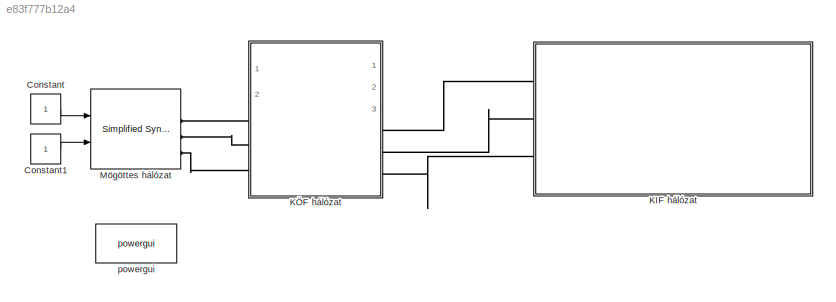
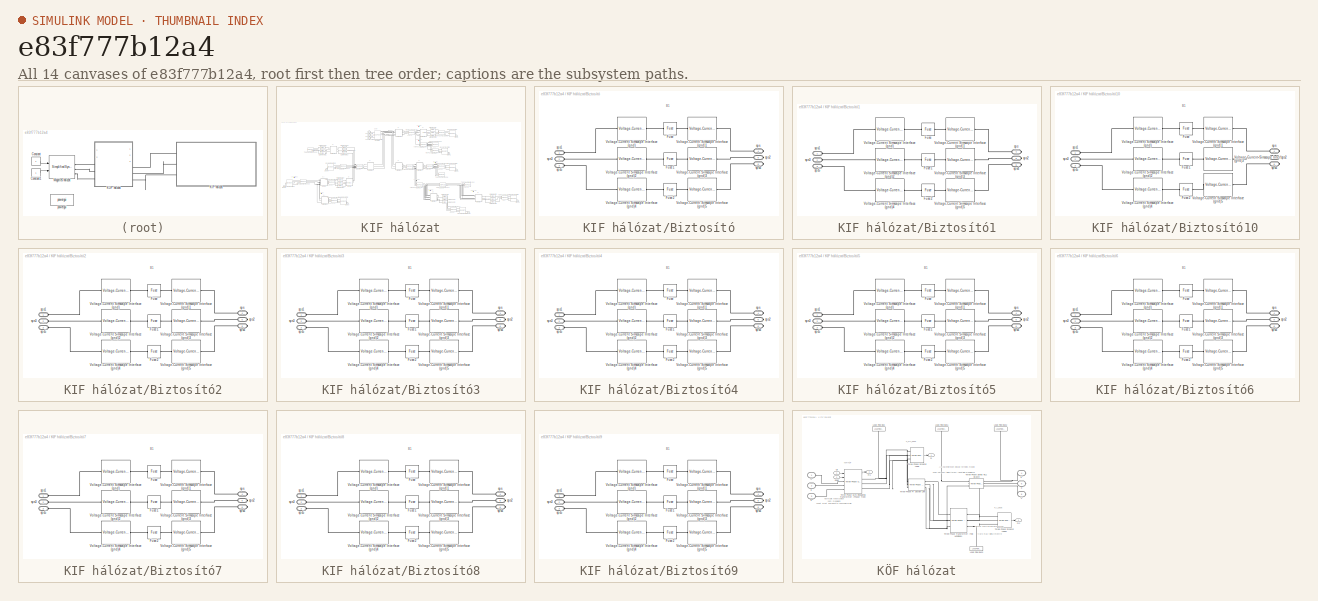
[diagram: thumbnail index - all 14 canvases of the model, root first then tree order]
MODEL slx_e83f777b12a4
KIND model
CONFIG AbsTol = auto
CONFIG EnableMultiTasking = off
CONFIG FixedStep = auto
CONFIG MaxStep = auto
CONFIG MinStep = auto
CONFIG RelTol = 1e-3
CONFIG SampleTimeConstraint = Unconstrained
CONFIG Solver = VariableStepAuto
CONFIG SolverName = VariableStepAuto
CONFIG StartTime = 0.0
CONFIG StopTime = 10.0
BLOCK [Constant] Constant
BLOCK [Constant] Constant1
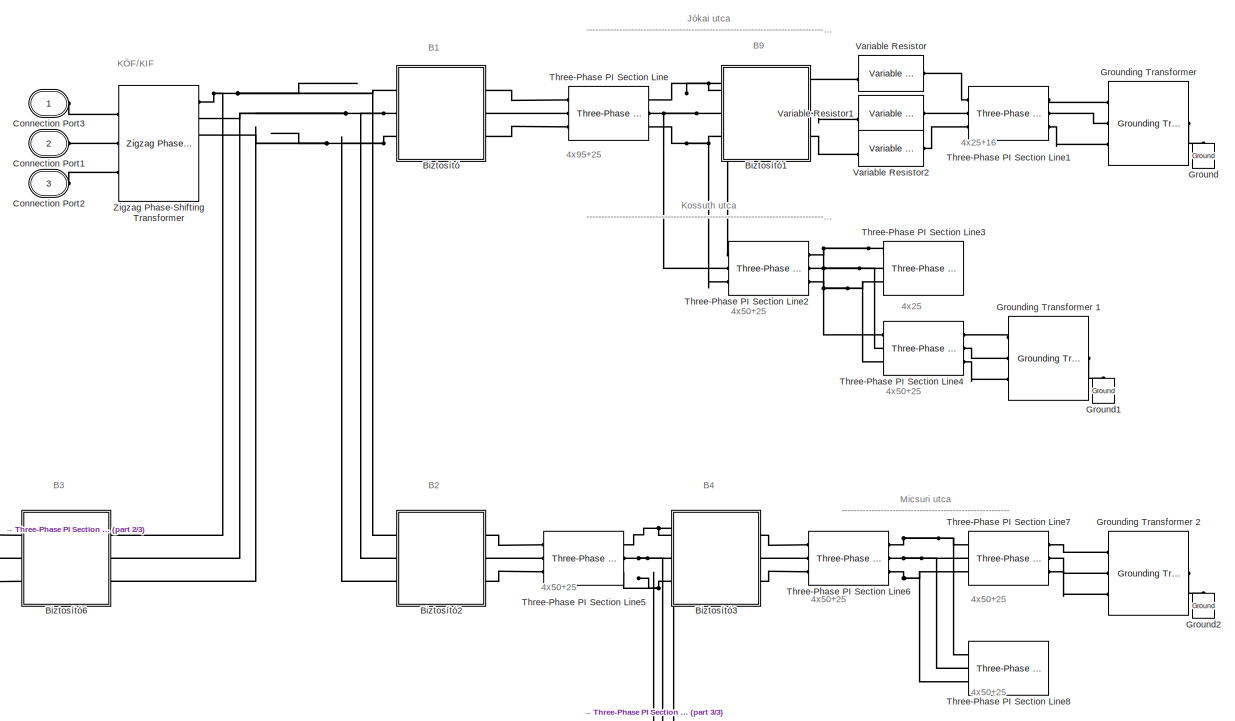
[diagram: KIF hálózat - part 1/3, top center region]
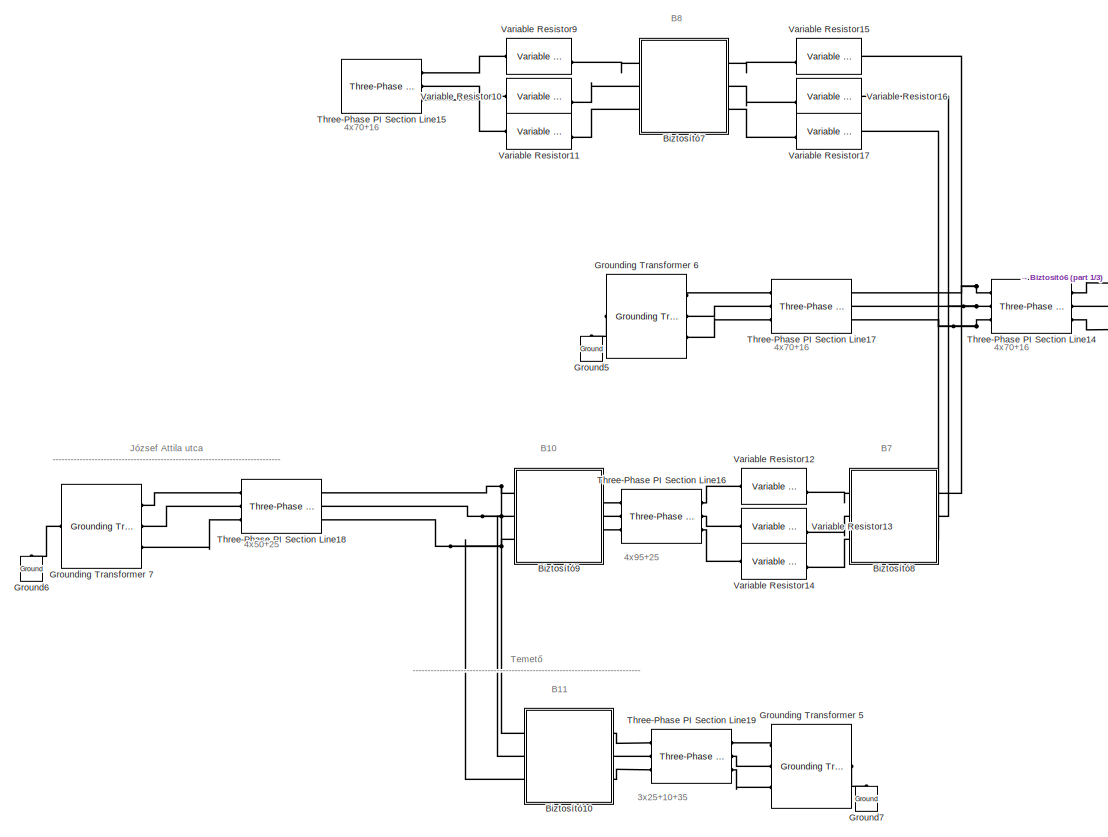
[diagram: KIF hálózat - part 2/3, middle left region]
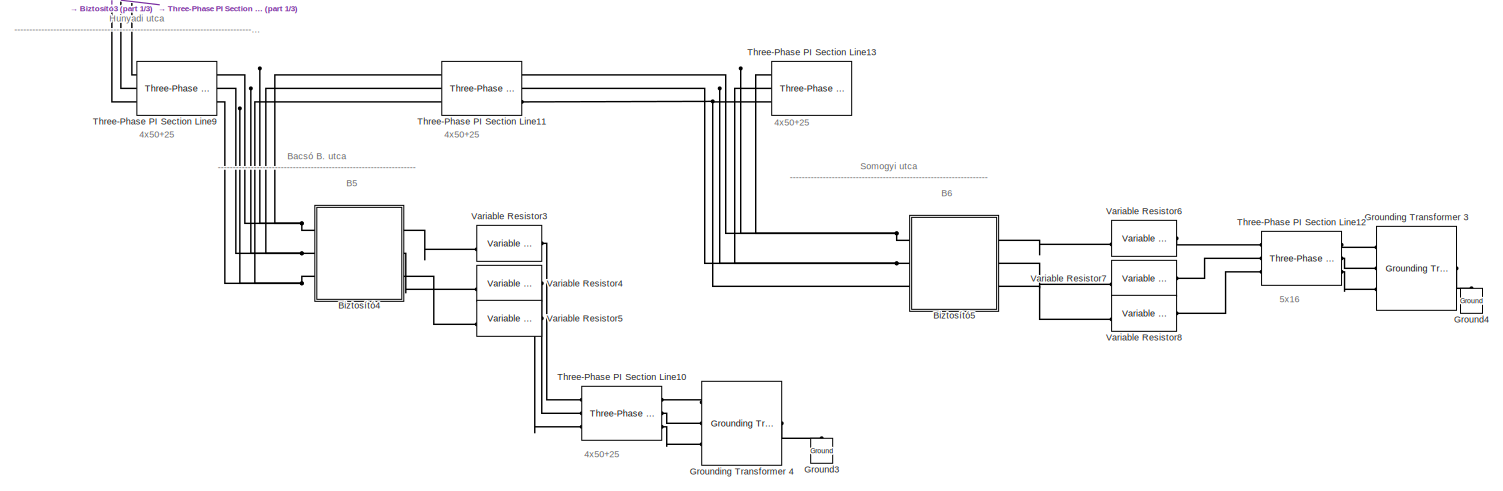
[diagram: KIF hálózat - part 3/3, bottom right region]
BLOCK [SubSystem] KIF hálózat
  Ports = [0, 0, 0, 0, 0, 3]
  RequestExecContextInheritance = off
BLOCK [SubSystem] KIF hálózat/Biztosító
  Ports = [0, 0, 0, 0, 0, 3, 3]
  RequestExecContextInheritance = off
BLOCK [Reference] KIF hálózat/Biztosító/Fuse  REF=ee_lib/Switches & Breakers/Fuse
  Ports = [0, 0, 0, 0, 0, 1, 1]
  SourceBlock = ee_lib/Switches & Breakers/Fuse
  SourceProductBaseCode = PS
  SourceType = Fuse
BLOCK [Reference] KIF hálózat/Biztosító/Fuse1  REF=ee_lib/Switches & Breakers/Fuse
  Ports = [0, 0, 0, 0, 0, 1, 1]
  SourceBlock = ee_lib/Switches & Breakers/Fuse
  SourceProductBaseCode = PS
  SourceType = Fuse
BLOCK [Reference] KIF hálózat/Biztosító/Fuse2  REF=ee_lib/Switches & Breakers/Fuse
  Ports = [0, 0, 0, 0, 0, 1, 1]
  SourceBlock = ee_lib/Switches & Breakers/Fuse
  SourceProductBaseCode = PS
  SourceType = Fuse
BLOCK [Reference] KIF hálózat/Biztosító/Voltage-Current Simscape Interface (gnd)  REF=powerlib/Interface
Elements/Voltage-Current
Simscape Interface
(gnd)
  Ports = [0, 0, 0, 0, 0, 1, 1]
  SourceBlock = powerlib/Interface\nElements/Voltage-Current\nSimscape Interface\n(gnd)
  SourceProductBaseCode = PS
  SourceType = Specialized Power Systems - Simscape Interface Element
BLOCK [Reference] KIF hálózat/Biztosító/Voltage-Current Simscape Interface (gnd)1  REF=powerlib/Interface
Elements/Voltage-Current
Simscape Interface
(gnd)
  Ports = [0, 0, 0, 0, 0, 1, 1]
  SourceBlock = powerlib/Interface\nElements/Voltage-Current\nSimscape Interface\n(gnd)
  SourceProductBaseCode = PS
  SourceType = Specialized Power Systems - Simscape Interface Element
BLOCK [Reference] KIF hálózat/Biztosító/Voltage-Current Simscape Interface (gnd)2  REF=powerlib/Interface
Elements/Voltage-Current
Simscape Interface
(gnd)
  Ports = [0, 0, 0, 0, 0, 1, 1]
  SourceBlock = powerlib/Interface\nElements/Voltage-Current\nSimscape Interface\n(gnd)
  SourceProductBaseCode = PS
  SourceType = Specialized Power Systems - Simscape Interface Element
BLOCK [Reference] KIF hálózat/Biztosító/Voltage-Current Simscape Interface (gnd)3  REF=powerlib/Interface
Elements/Voltage-Current
Simscape Interface
(gnd)
  Ports = [0, 0, 0, 0, 0, 1, 1]
  SourceBlock = powerlib/Interface\nElements/Voltage-Current\nSimscape Interface\n(gnd)
  SourceProductBaseCode = PS
  SourceType = Specialized Power Systems - Simscape Interface Element
BLOCK [Reference] KIF hálózat/Biztosító/Voltage-Current Simscape Interface (gnd)4  REF=powerlib/Interface
Elements/Voltage-Current
Simscape Interface
(gnd)
  Ports = [0, 0, 0, 0, 0, 1, 1]
  SourceBlock = powerlib/Interface\nElements/Voltage-Current\nSimscape Interface\n(gnd)
  SourceProductBaseCode = PS
  SourceType = Specialized Power Systems - Simscape Interface Element
BLOCK [Reference] KIF hálózat/Biztosító/Voltage-Current Simscape Interface (gnd)5  REF=powerlib/Interface
Elements/Voltage-Current
Simscape Interface
(gnd)
  Ports = [0, 0, 0, 0, 0, 1, 1]
  SourceBlock = powerlib/Interface\nElements/Voltage-Current\nSimscape Interface\n(gnd)
  SourceProductBaseCode = PS
  SourceType = Specialized Power Systems - Simscape Interface Element
BLOCK [PMIOPort] KIF hálózat/Biztosító/sps
  Port = 4
  Side = Right
BLOCK [PMIOPort] KIF hálózat/Biztosító/sps1
  Side = Left
BLOCK [PMIOPort] KIF hálózat/Biztosító/sps2
  Port = 5
  Side = Right
BLOCK [PMIOPort] KIF hálózat/Biztosító/sps3
  Port = 2
  Side = Left
BLOCK [PMIOPort] KIF hálózat/Biztosító/sps4
  Port = 6
  Side = Right
BLOCK [PMIOPort] KIF hálózat/Biztosító/sps5
  Port = 3
  Side = Left
BLOCK [SubSystem] KIF hálózat/Biztosító1
  Ports = [0, 0, 0, 0, 0, 3, 3]
  RequestExecContextInheritance = off
BLOCK [Reference] KIF hálózat/Biztosító1/Fuse  REF=ee_lib/Switches & Breakers/Fuse
  Ports = [0, 0, 0, 0, 0, 1, 1]
  SourceBlock = ee_lib/Switches & Breakers/Fuse
  SourceProductBaseCode = PS
  SourceType = Fuse
BLOCK [Reference] KIF hálózat/Biztosító1/Fuse1  REF=ee_lib/Switches & Breakers/Fuse
  Ports = [0, 0, 0, 0, 0, 1, 1]
  SourceBlock = ee_lib/Switches & Breakers/Fuse
  SourceProductBaseCode = PS
  SourceType = Fuse
BLOCK [Reference] KIF hálózat/Biztosító1/Fuse2  REF=ee_lib/Switches & Breakers/Fuse
  Ports = [0, 0, 0, 0, 0, 1, 1]
  SourceBlock = ee_lib/Switches & Breakers/Fuse
  SourceProductBaseCode = PS
  SourceType = Fuse
BLOCK [Reference] KIF hálózat/Biztosító1/Voltage-Current Simscape Interface (gnd)  REF=powerlib/Interface
Elements/Voltage-Current
Simscape Interface
(gnd)
  Ports = [0, 0, 0, 0, 0, 1, 1]
  SourceBlock = powerlib/Interface\nElements/Voltage-Current\nSimscape Interface\n(gnd)
  SourceProductBaseCode = PS
  SourceType = Specialized Power Systems - Simscape Interface Element
BLOCK [Reference] KIF hálózat/Biztosító1/Voltage-Current Simscape Interface (gnd)1  REF=powerlib/Interface
Elements/Voltage-Current
Simscape Interface
(gnd)
  Ports = [0, 0, 0, 0, 0, 1, 1]
  SourceBlock = powerlib/Interface\nElements/Voltage-Current\nSimscape Interface\n(gnd)
  SourceProductBaseCode = PS
  SourceType = Specialized Power Systems - Simscape Interface Element
BLOCK [Reference] KIF hálózat/Biztosító1/Voltage-Current Simscape Interface (gnd)2  REF=powerlib/Interface
Elements/Voltage-Current
Simscape Interface
(gnd)
  Ports = [0, 0, 0, 0, 0, 1, 1]
  SourceBlock = powerlib/Interface\nElements/Voltage-Current\nSimscape Interface\n(gnd)
  SourceProductBaseCode = PS
  SourceType = Specialized Power Systems - Simscape Interface Element
BLOCK [Reference] KIF hálózat/Biztosító1/Voltage-Current Simscape Interface (gnd)3  REF=powerlib/Interface
Elements/Voltage-Current
Simscape Interface
(gnd)
  Ports = [0, 0, 0, 0, 0, 1, 1]
  SourceBlock = powerlib/Interface\nElements/Voltage-Current\nSimscape Interface\n(gnd)
  SourceProductBaseCode = PS
  SourceType = Specialized Power Systems - Simscape Interface Element
BLOCK [Reference] KIF hálózat/Biztosító1/Voltage-Current Simscape Interface (gnd)4  REF=powerlib/Interface
Elements/Voltage-Current
Simscape Interface
(gnd)
  Ports = [0, 0, 0, 0, 0, 1, 1]
  SourceBlock = powerlib/Interface\nElements/Voltage-Current\nSimscape Interface\n(gnd)
  SourceProductBaseCode = PS
  SourceType = Specialized Power Systems - Simscape Interface Element
BLOCK [Reference] KIF hálózat/Biztosító1/Voltage-Current Simscape Interface (gnd)5  REF=powerlib/Interface
Elements/Voltage-Current
Simscape Interface
(gnd)
  Ports = [0, 0, 0, 0, 0, 1, 1]
  SourceBlock = powerlib/Interface\nElements/Voltage-Current\nSimscape Interface\n(gnd)
  SourceProductBaseCode = PS
  SourceType = Specialized Power Systems - Simscape Interface Element
BLOCK [PMIOPort] KIF hálózat/Biztosító1/sps
  Port = 4
  Side = Right
BLOCK [PMIOPort] KIF hálózat/Biztosító1/sps1
  Side = Left
BLOCK [PMIOPort] KIF hálózat/Biztosító1/sps2
  Port = 5
  Side = Right
BLOCK [PMIOPort] KIF hálózat/Biztosító1/sps3
  Port = 2
  Side = Left
BLOCK [PMIOPort] KIF hálózat/Biztosító1/sps4
  Port = 6
  Side = Right
BLOCK [PMIOPort] KIF hálózat/Biztosító1/sps5
  Port = 3
  Side = Left
BLOCK [SubSystem] KIF hálózat/Biztosító10
  Ports = [0, 0, 0, 0, 0, 3, 3]
  RequestExecContextInheritance = off
BLOCK [Reference] KIF hálózat/Biztosító10/Fuse  REF=ee_lib/Switches & Breakers/Fuse
  Ports = [0, 0, 0, 0, 0, 1, 1]
  SourceBlock = ee_lib/Switches & Breakers/Fuse
  SourceProductBaseCode = PS
  SourceType = Fuse
BLOCK [Reference] KIF hálózat/Biztosító10/Fuse1  REF=ee_lib/Switches & Breakers/Fuse
  Ports = [0, 0, 0, 0, 0, 1, 1]
  SourceBlock = ee_lib/Switches & Breakers/Fuse
  SourceProductBaseCode = PS
  SourceType = Fuse
BLOCK [Reference] KIF hálózat/Biztosító10/Fuse2  REF=ee_lib/Switches & Breakers/Fuse
  Ports = [0, 0, 0, 0, 0, 1, 1]
  SourceBlock = ee_lib/Switches & Breakers/Fuse
  SourceProductBaseCode = PS
  SourceType = Fuse
BLOCK [Reference] KIF hálózat/Biztosító10/Voltage-Current Simscape Interface (gnd)  REF=powerlib/Interface
Elements/Voltage-Current
Simscape Interface
(gnd)
  Ports = [0, 0, 0, 0, 0, 1, 1]
  SourceBlock = powerlib/Interface\nElements/Voltage-Current\nSimscape Interface\n(gnd)
  SourceProductBaseCode = PS
  SourceType = Specialized Power Systems - Simscape Interface Element
BLOCK [Reference] KIF hálózat/Biztosító10/Voltage-Current Simscape Interface (gnd)1  REF=powerlib/Interface
Elements/Voltage-Current
Simscape Interface
(gnd)
  Ports = [0, 0, 0, 0, 0, 1, 1]
  SourceBlock = powerlib/Interface\nElements/Voltage-Current\nSimscape Interface\n(gnd)
  SourceProductBaseCode = PS
  SourceType = Specialized Power Systems - Simscape Interface Element
BLOCK [Reference] KIF hálózat/Biztosító10/Voltage-Current Simscape Interface (gnd)2  REF=powerlib/Interface
Elements/Voltage-Current
Simscape Interface
(gnd)
  Ports = [0, 0, 0, 0, 0, 1, 1]
  SourceBlock = powerlib/Interface\nElements/Voltage-Current\nSimscape Interface\n(gnd)
  SourceProductBaseCode = PS
  SourceType = Specialized Power Systems - Simscape Interface Element
BLOCK [Reference] KIF hálózat/Biztosító10/Voltage-Current Simscape Interface (gnd)3  REF=powerlib/Interface
Elements/Voltage-Current
Simscape Interface
(gnd)
  Ports = [0, 0, 0, 0, 0, 1, 1]
  SourceBlock = powerlib/Interface\nElements/Voltage-Current\nSimscape Interface\n(gnd)
  SourceProductBaseCode = PS
  SourceType = Specialized Power Systems - Simscape Interface Element
BLOCK [Reference] KIF hálózat/Biztosító10/Voltage-Current Simscape Interface (gnd)4  REF=powerlib/Interface
Elements/Voltage-Current
Simscape Interface
(gnd)
  Ports = [0, 0, 0, 0, 0, 1, 1]
  SourceBlock = powerlib/Interface\nElements/Voltage-Current\nSimscape Interface\n(gnd)
  SourceProductBaseCode = PS
  SourceType = Specialized Power Systems - Simscape Interface Element
BLOCK [Reference] KIF hálózat/Biztosító10/Voltage-Current Simscape Interface (gnd)5  REF=powerlib/Interface
Elements/Voltage-Current
Simscape Interface
(gnd)
  Ports = [0, 0, 0, 0, 0, 1, 1]
  SourceBlock = powerlib/Interface\nElements/Voltage-Current\nSimscape Interface\n(gnd)
  SourceProductBaseCode = PS
  SourceType = Specialized Power Systems - Simscape Interface Element
BLOCK [PMIOPort] KIF hálózat/Biztosító10/sps
  Port = 4
  Side = Right
BLOCK [PMIOPort] KIF hálózat/Biztosító10/sps1
  Side = Left
BLOCK [PMIOPort] KIF hálózat/Biztosító10/sps2
  Port = 5
  Side = Right
BLOCK [PMIOPort] KIF hálózat/Biztosító10/sps3
  Port = 2
  Side = Left
BLOCK [PMIOPort] KIF hálózat/Biztosító10/sps4
  Port = 6
  Side = Right
BLOCK [PMIOPort] KIF hálózat/Biztosító10/sps5
  Port = 3
  Side = Left
BLOCK [SubSystem] KIF hálózat/Biztosító2
  Ports = [0, 0, 0, 0, 0, 3, 3]
  RequestExecContextInheritance = off
BLOCK [Reference] KIF hálózat/Biztosító2/Fuse  REF=ee_lib/Switches & Breakers/Fuse
  Ports = [0, 0, 0, 0, 0, 1, 1]
  SourceBlock = ee_lib/Switches & Breakers/Fuse
  SourceProductBaseCode = PS
  SourceType = Fuse
BLOCK [Reference] KIF hálózat/Biztosító2/Fuse1  REF=ee_lib/Switches & Breakers/Fuse
  Ports = [0, 0, 0, 0, 0, 1, 1]
  SourceBlock = ee_lib/Switches & Breakers/Fuse
  SourceProductBaseCode = PS
  SourceType = Fuse
BLOCK [Reference] KIF hálózat/Biztosító2/Fuse2  REF=ee_lib/Switches & Breakers/Fuse
  Ports = [0, 0, 0, 0, 0, 1, 1]
  SourceBlock = ee_lib/Switches & Breakers/Fuse
  SourceProductBaseCode = PS
  SourceType = Fuse
BLOCK [Reference] KIF hálózat/Biztosító2/Voltage-Current Simscape Interface (gnd)  REF=powerlib/Interface
Elements/Voltage-Current
Simscape Interface
(gnd)
  Ports = [0, 0, 0, 0, 0, 1, 1]
  SourceBlock = powerlib/Interface\nElements/Voltage-Current\nSimscape Interface\n(gnd)
  SourceProductBaseCode = PS
  SourceType = Specialized Power Systems - Simscape Interface Element
BLOCK [Reference] KIF hálózat/Biztosító2/Voltage-Current Simscape Interface (gnd)1  REF=powerlib/Interface
Elements/Voltage-Current
Simscape Interface
(gnd)
  Ports = [0, 0, 0, 0, 0, 1, 1]
  SourceBlock = powerlib/Interface\nElements/Voltage-Current\nSimscape Interface\n(gnd)
  SourceProductBaseCode = PS
  SourceType = Specialized Power Systems - Simscape Interface Element
BLOCK [Reference] KIF hálózat/Biztosító2/Voltage-Current Simscape Interface (gnd)2  REF=powerlib/Interface
Elements/Voltage-Current
Simscape Interface
(gnd)
  Ports = [0, 0, 0, 0, 0, 1, 1]
  SourceBlock = powerlib/Interface\nElements/Voltage-Current\nSimscape Interface\n(gnd)
  SourceProductBaseCode = PS
  SourceType = Specialized Power Systems - Simscape Interface Element
BLOCK [Reference] KIF hálózat/Biztosító2/Voltage-Current Simscape Interface (gnd)3  REF=powerlib/Interface
Elements/Voltage-Current
Simscape Interface
(gnd)
  Ports = [0, 0, 0, 0, 0, 1, 1]
  SourceBlock = powerlib/Interface\nElements/Voltage-Current\nSimscape Interface\n(gnd)
  SourceProductBaseCode = PS
  SourceType = Specialized Power Systems - Simscape Interface Element
BLOCK [Reference] KIF hálózat/Biztosító2/Voltage-Current Simscape Interface (gnd)4  REF=powerlib/Interface
Elements/Voltage-Current
Simscape Interface
(gnd)
  Ports = [0, 0, 0, 0, 0, 1, 1]
  SourceBlock = powerlib/Interface\nElements/Voltage-Current\nSimscape Interface\n(gnd)
  SourceProductBaseCode = PS
  SourceType = Specialized Power Systems - Simscape Interface Element
BLOCK [Reference] KIF hálózat/Biztosító2/Voltage-Current Simscape Interface (gnd)5  REF=powerlib/Interface
Elements/Voltage-Current
Simscape Interface
(gnd)
  Ports = [0, 0, 0, 0, 0, 1, 1]
  SourceBlock = powerlib/Interface\nElements/Voltage-Current\nSimscape Interface\n(gnd)
  SourceProductBaseCode = PS
  SourceType = Specialized Power Systems - Simscape Interface Element
BLOCK [PMIOPort] KIF hálózat/Biztosító2/sps
  Port = 4
  Side = Right
BLOCK [PMIOPort] KIF hálózat/Biztosító2/sps1
  Side = Left
BLOCK [PMIOPort] KIF hálózat/Biztosító2/sps2
  Port = 5
  Side = Right
BLOCK [PMIOPort] KIF hálózat/Biztosító2/sps3
  Port = 2
  Side = Left
BLOCK [PMIOPort] KIF hálózat/Biztosító2/sps4
  Port = 6
  Side = Right
BLOCK [PMIOPort] KIF hálózat/Biztosító2/sps5
  Port = 3
  Side = Left
BLOCK [SubSystem] KIF hálózat/Biztosító3
  Ports = [0, 0, 0, 0, 0, 3, 3]
  RequestExecContextInheritance = off
BLOCK [Reference] KIF hálózat/Biztosító3/Fuse  REF=ee_lib/Switches & Breakers/Fuse
  Ports = [0, 0, 0, 0, 0, 1, 1]
  SourceBlock = ee_lib/Switches & Breakers/Fuse
  SourceProductBaseCode = PS
  SourceType = Fuse
BLOCK [Reference] KIF hálózat/Biztosító3/Fuse1  REF=ee_lib/Switches & Breakers/Fuse
  Ports = [0, 0, 0, 0, 0, 1, 1]
  SourceBlock = ee_lib/Switches & Breakers/Fuse
  SourceProductBaseCode = PS
  SourceType = Fuse
BLOCK [Reference] KIF hálózat/Biztosító3/Fuse2  REF=ee_lib/Switches & Breakers/Fuse
  Ports = [0, 0, 0, 0, 0, 1, 1]
  SourceBlock = ee_lib/Switches & Breakers/Fuse
  SourceProductBaseCode = PS
  SourceType = Fuse
BLOCK [Reference] KIF hálózat/Biztosító3/Voltage-Current Simscape Interface (gnd)  REF=powerlib/Interface
Elements/Voltage-Current
Simscape Interface
(gnd)
  Ports = [0, 0, 0, 0, 0, 1, 1]
  SourceBlock = powerlib/Interface\nElements/Voltage-Current\nSimscape Interface\n(gnd)
  SourceProductBaseCode = PS
  SourceType = Specialized Power Systems - Simscape Interface Element
BLOCK [Reference] KIF hálózat/Biztosító3/Voltage-Current Simscape Interface (gnd)1  REF=powerlib/Interface
Elements/Voltage-Current
Simscape Interface
(gnd)
  Ports = [0, 0, 0, 0, 0, 1, 1]
  SourceBlock = powerlib/Interface\nElements/Voltage-Current\nSimscape Interface\n(gnd)
  SourceProductBaseCode = PS
  SourceType = Specialized Power Systems - Simscape Interface Element
BLOCK [Reference] KIF hálózat/Biztosító3/Voltage-Current Simscape Interface (gnd)2  REF=powerlib/Interface
Elements/Voltage-Current
Simscape Interface
(gnd)
  Ports = [0, 0, 0, 0, 0, 1, 1]
  SourceBlock = powerlib/Interface\nElements/Voltage-Current\nSimscape Interface\n(gnd)
  SourceProductBaseCode = PS
  SourceType = Specialized Power Systems - Simscape Interface Element
BLOCK [Reference] KIF hálózat/Biztosító3/Voltage-Current Simscape Interface (gnd)3  REF=powerlib/Interface
Elements/Voltage-Current
Simscape Interface
(gnd)
  Ports = [0, 0, 0, 0, 0, 1, 1]
  SourceBlock = powerlib/Interface\nElements/Voltage-Current\nSimscape Interface\n(gnd)
  SourceProductBaseCode = PS
  SourceType = Specialized Power Systems - Simscape Interface Element
BLOCK [Reference] KIF hálózat/Biztosító3/Voltage-Current Simscape Interface (gnd)4  REF=powerlib/Interface
Elements/Voltage-Current
Simscape Interface
(gnd)
  Ports = [0, 0, 0, 0, 0, 1, 1]
  SourceBlock = powerlib/Interface\nElements/Voltage-Current\nSimscape Interface\n(gnd)
  SourceProductBaseCode = PS
  SourceType = Specialized Power Systems - Simscape Interface Element
BLOCK [Reference] KIF hálózat/Biztosító3/Voltage-Current Simscape Interface (gnd)5  REF=powerlib/Interface
Elements/Voltage-Current
Simscape Interface
(gnd)
  Ports = [0, 0, 0, 0, 0, 1, 1]
  SourceBlock = powerlib/Interface\nElements/Voltage-Current\nSimscape Interface\n(gnd)
  SourceProductBaseCode = PS
  SourceType = Specialized Power Systems - Simscape Interface Element
BLOCK [PMIOPort] KIF hálózat/Biztosító3/sps
  Port = 4
  Side = Right
BLOCK [PMIOPort] KIF hálózat/Biztosító3/sps1
  Side = Left
BLOCK [PMIOPort] KIF hálózat/Biztosító3/sps2
  Port = 5
  Side = Right
BLOCK [PMIOPort] KIF hálózat/Biztosító3/sps3
  Port = 2
  Side = Left
BLOCK [PMIOPort] KIF hálózat/Biztosító3/sps4
  Port = 6
  Side = Right
BLOCK [PMIOPort] KIF hálózat/Biztosító3/sps5
  Port = 3
  Side = Left
BLOCK [SubSystem] KIF hálózat/Biztosító4
  Ports = [0, 0, 0, 0, 0, 3, 3]
  RequestExecContextInheritance = off
BLOCK [Reference] KIF hálózat/Biztosító4/Fuse  REF=ee_lib/Switches & Breakers/Fuse
  Ports = [0, 0, 0, 0, 0, 1, 1]
  SourceBlock = ee_lib/Switches & Breakers/Fuse
  SourceProductBaseCode = PS
  SourceType = Fuse
BLOCK [Reference] KIF hálózat/Biztosító4/Fuse1  REF=ee_lib/Switches & Breakers/Fuse
  Ports = [0, 0, 0, 0, 0, 1, 1]
  SourceBlock = ee_lib/Switches & Breakers/Fuse
  SourceProductBaseCode = PS
  SourceType = Fuse
BLOCK [Reference] KIF hálózat/Biztosító4/Fuse2  REF=ee_lib/Switches & Breakers/Fuse
  Ports = [0, 0, 0, 0, 0, 1, 1]
  SourceBlock = ee_lib/Switches & Breakers/Fuse
  SourceProductBaseCode = PS
  SourceType = Fuse
BLOCK [Reference] KIF hálózat/Biztosító4/Voltage-Current Simscape Interface (gnd)  REF=powerlib/Interface
Elements/Voltage-Current
Simscape Interface
(gnd)
  Ports = [0, 0, 0, 0, 0, 1, 1]
  SourceBlock = powerlib/Interface\nElements/Voltage-Current\nSimscape Interface\n(gnd)
  SourceProductBaseCode = PS
  SourceType = Specialized Power Systems - Simscape Interface Element
BLOCK [Reference] KIF hálózat/Biztosító4/Voltage-Current Simscape Interface (gnd)1  REF=powerlib/Interface
Elements/Voltage-Current
Simscape Interface
(gnd)
  Ports = [0, 0, 0, 0, 0, 1, 1]
  SourceBlock = powerlib/Interface\nElements/Voltage-Current\nSimscape Interface\n(gnd)
  SourceProductBaseCode = PS
  SourceType = Specialized Power Systems - Simscape Interface Element
BLOCK [Reference] KIF hálózat/Biztosító4/Voltage-Current Simscape Interface (gnd)2  REF=powerlib/Interface
Elements/Voltage-Current
Simscape Interface
(gnd)
  Ports = [0, 0, 0, 0, 0, 1, 1]
  SourceBlock = powerlib/Interface\nElements/Voltage-Current\nSimscape Interface\n(gnd)
  SourceProductBaseCode = PS
  SourceType = Specialized Power Systems - Simscape Interface Element
BLOCK [Reference] KIF hálózat/Biztosító4/Voltage-Current Simscape Interface (gnd)3  REF=powerlib/Interface
Elements/Voltage-Current
Simscape Interface
(gnd)
  Ports = [0, 0, 0, 0, 0, 1, 1]
  SourceBlock = powerlib/Interface\nElements/Voltage-Current\nSimscape Interface\n(gnd)
  SourceProductBaseCode = PS
  SourceType = Specialized Power Systems - Simscape Interface Element
BLOCK [Reference] KIF hálózat/Biztosító4/Voltage-Current Simscape Interface (gnd)4  REF=powerlib/Interface
Elements/Voltage-Current
Simscape Interface
(gnd)
  Ports = [0, 0, 0, 0, 0, 1, 1]
  SourceBlock = powerlib/Interface\nElements/Voltage-Current\nSimscape Interface\n(gnd)
  SourceProductBaseCode = PS
  SourceType = Specialized Power Systems - Simscape Interface Element
BLOCK [Reference] KIF hálózat/Biztosító4/Voltage-Current Simscape Interface (gnd)5  REF=powerlib/Interface
Elements/Voltage-Current
Simscape Interface
(gnd)
  Ports = [0, 0, 0, 0, 0, 1, 1]
  SourceBlock = powerlib/Interface\nElements/Voltage-Current\nSimscape Interface\n(gnd)
  SourceProductBaseCode = PS
  SourceType = Specialized Power Systems - Simscape Interface Element
BLOCK [PMIOPort] KIF hálózat/Biztosító4/sps
  Port = 4
  Side = Right
BLOCK [PMIOPort] KIF hálózat/Biztosító4/sps1
  Side = Left
BLOCK [PMIOPort] KIF hálózat/Biztosító4/sps2
  Port = 5
  Side = Right
BLOCK [PMIOPort] KIF hálózat/Biztosító4/sps3
  Port = 2
  Side = Left
BLOCK [PMIOPort] KIF hálózat/Biztosító4/sps4
  Port = 6
  Side = Right
BLOCK [PMIOPort] KIF hálózat/Biztosító4/sps5
  Port = 3
  Side = Left
BLOCK [SubSystem] KIF hálózat/Biztosító5
  Ports = [0, 0, 0, 0, 0, 3, 3]
  RequestExecContextInheritance = off
BLOCK [Reference] KIF hálózat/Biztosító5/Fuse  REF=ee_lib/Switches & Breakers/Fuse
  Ports = [0, 0, 0, 0, 0, 1, 1]
  SourceBlock = ee_lib/Switches & Breakers/Fuse
  SourceProductBaseCode = PS
  SourceType = Fuse
BLOCK [Reference] KIF hálózat/Biztosító5/Fuse1  REF=ee_lib/Switches & Breakers/Fuse
  Ports = [0, 0, 0, 0, 0, 1, 1]
  SourceBlock = ee_lib/Switches & Breakers/Fuse
  SourceProductBaseCode = PS
  SourceType = Fuse
BLOCK [Reference] KIF hálózat/Biztosító5/Fuse2  REF=ee_lib/Switches & Breakers/Fuse
  Ports = [0, 0, 0, 0, 0, 1, 1]
  SourceBlock = ee_lib/Switches & Breakers/Fuse
  SourceProductBaseCode = PS
  SourceType = Fuse
BLOCK [Reference] KIF hálózat/Biztosító5/Voltage-Current Simscape Interface (gnd)  REF=powerlib/Interface
Elements/Voltage-Current
Simscape Interface
(gnd)
  Ports = [0, 0, 0, 0, 0, 1, 1]
  SourceBlock = powerlib/Interface\nElements/Voltage-Current\nSimscape Interface\n(gnd)
  SourceProductBaseCode = PS
  SourceType = Specialized Power Systems - Simscape Interface Element
BLOCK [Reference] KIF hálózat/Biztosító5/Voltage-Current Simscape Interface (gnd)1  REF=powerlib/Interface
Elements/Voltage-Current
Simscape Interface
(gnd)
  Ports = [0, 0, 0, 0, 0, 1, 1]
  SourceBlock = powerlib/Interface\nElements/Voltage-Current\nSimscape Interface\n(gnd)
  SourceProductBaseCode = PS
  SourceType = Specialized Power Systems - Simscape Interface Element
BLOCK [Reference] KIF hálózat/Biztosító5/Voltage-Current Simscape Interface (gnd)2  REF=powerlib/Interface
Elements/Voltage-Current
Simscape Interface
(gnd)
  Ports = [0, 0, 0, 0, 0, 1, 1]
  SourceBlock = powerlib/Interface\nElements/Voltage-Current\nSimscape Interface\n(gnd)
  SourceProductBaseCode = PS
  SourceType = Specialized Power Systems - Simscape Interface Element
BLOCK [Reference] KIF hálózat/Biztosító5/Voltage-Current Simscape Interface (gnd)3  REF=powerlib/Interface
Elements/Voltage-Current
Simscape Interface
(gnd)
  Ports = [0, 0, 0, 0, 0, 1, 1]
  SourceBlock = powerlib/Interface\nElements/Voltage-Current\nSimscape Interface\n(gnd)
  SourceProductBaseCode = PS
  SourceType = Specialized Power Systems - Simscape Interface Element
BLOCK [Reference] KIF hálózat/Biztosító5/Voltage-Current Simscape Interface (gnd)4  REF=powerlib/Interface
Elements/Voltage-Current
Simscape Interface
(gnd)
  Ports = [0, 0, 0, 0, 0, 1, 1]
  SourceBlock = powerlib/Interface\nElements/Voltage-Current\nSimscape Interface\n(gnd)
  SourceProductBaseCode = PS
  SourceType = Specialized Power Systems - Simscape Interface Element
BLOCK [Reference] KIF hálózat/Biztosító5/Voltage-Current Simscape Interface (gnd)5  REF=powerlib/Interface
Elements/Voltage-Current
Simscape Interface
(gnd)
  Ports = [0, 0, 0, 0, 0, 1, 1]
  SourceBlock = powerlib/Interface\nElements/Voltage-Current\nSimscape Interface\n(gnd)
  SourceProductBaseCode = PS
  SourceType = Specialized Power Systems - Simscape Interface Element
BLOCK [PMIOPort] KIF hálózat/Biztosító5/sps
  Port = 4
  Side = Right
BLOCK [PMIOPort] KIF hálózat/Biztosító5/sps1
  Side = Left
BLOCK [PMIOPort] KIF hálózat/Biztosító5/sps2
  Port = 5
  Side = Right
BLOCK [PMIOPort] KIF hálózat/Biztosító5/sps3
  Port = 2
  Side = Left
BLOCK [PMIOPort] KIF hálózat/Biztosító5/sps4
  Port = 6
  Side = Right
BLOCK [PMIOPort] KIF hálózat/Biztosító5/sps5
  Port = 3
  Side = Left
BLOCK [SubSystem] KIF hálózat/Biztosító6
  Ports = [0, 0, 0, 0, 0, 3, 3]
  RequestExecContextInheritance = off
BLOCK [Reference] KIF hálózat/Biztosító6/Fuse  REF=ee_lib/Switches & Breakers/Fuse
  Ports = [0, 0, 0, 0, 0, 1, 1]
  SourceBlock = ee_lib/Switches & Breakers/Fuse
  SourceProductBaseCode = PS
  SourceType = Fuse
BLOCK [Reference] KIF hálózat/Biztosító6/Fuse1  REF=ee_lib/Switches & Breakers/Fuse
  Ports = [0, 0, 0, 0, 0, 1, 1]
  SourceBlock = ee_lib/Switches & Breakers/Fuse
  SourceProductBaseCode = PS
  SourceType = Fuse
BLOCK [Reference] KIF hálózat/Biztosító6/Fuse2  REF=ee_lib/Switches & Breakers/Fuse
  Ports = [0, 0, 0, 0, 0, 1, 1]
  SourceBlock = ee_lib/Switches & Breakers/Fuse
  SourceProductBaseCode = PS
  SourceType = Fuse
BLOCK [Reference] KIF hálózat/Biztosító6/Voltage-Current Simscape Interface (gnd)  REF=powerlib/Interface
Elements/Voltage-Current
Simscape Interface
(gnd)
  Ports = [0, 0, 0, 0, 0, 1, 1]
  SourceBlock = powerlib/Interface\nElements/Voltage-Current\nSimscape Interface\n(gnd)
  SourceProductBaseCode = PS
  SourceType = Specialized Power Systems - Simscape Interface Element
BLOCK [Reference] KIF hálózat/Biztosító6/Voltage-Current Simscape Interface (gnd)1  REF=powerlib/Interface
Elements/Voltage-Current
Simscape Interface
(gnd)
  Ports = [0, 0, 0, 0, 0, 1, 1]
  SourceBlock = powerlib/Interface\nElements/Voltage-Current\nSimscape Interface\n(gnd)
  SourceProductBaseCode = PS
  SourceType = Specialized Power Systems - Simscape Interface Element
BLOCK [Reference] KIF hálózat/Biztosító6/Voltage-Current Simscape Interface (gnd)2  REF=powerlib/Interface
Elements/Voltage-Current
Simscape Interface
(gnd)
  Ports = [0, 0, 0, 0, 0, 1, 1]
  SourceBlock = powerlib/Interface\nElements/Voltage-Current\nSimscape Interface\n(gnd)
  SourceProductBaseCode = PS
  SourceType = Specialized Power Systems - Simscape Interface Element
BLOCK [Reference] KIF hálózat/Biztosító6/Voltage-Current Simscape Interface (gnd)3  REF=powerlib/Interface
Elements/Voltage-Current
Simscape Interface
(gnd)
  Ports = [0, 0, 0, 0, 0, 1, 1]
  SourceBlock = powerlib/Interface\nElements/Voltage-Current\nSimscape Interface\n(gnd)
  SourceProductBaseCode = PS
  SourceType = Specialized Power Systems - Simscape Interface Element
BLOCK [Reference] KIF hálózat/Biztosító6/Voltage-Current Simscape Interface (gnd)4  REF=powerlib/Interface
Elements/Voltage-Current
Simscape Interface
(gnd)
  Ports = [0, 0, 0, 0, 0, 1, 1]
  SourceBlock = powerlib/Interface\nElements/Voltage-Current\nSimscape Interface\n(gnd)
  SourceProductBaseCode = PS
  SourceType = Specialized Power Systems - Simscape Interface Element
BLOCK [Reference] KIF hálózat/Biztosító6/Voltage-Current Simscape Interface (gnd)5  REF=powerlib/Interface
Elements/Voltage-Current
Simscape Interface
(gnd)
  Ports = [0, 0, 0, 0, 0, 1, 1]
  SourceBlock = powerlib/Interface\nElements/Voltage-Current\nSimscape Interface\n(gnd)
  SourceProductBaseCode = PS
  SourceType = Specialized Power Systems - Simscape Interface Element
BLOCK [PMIOPort] KIF hálózat/Biztosító6/sps
  Port = 4
  Side = Right
BLOCK [PMIOPort] KIF hálózat/Biztosító6/sps1
  Side = Left
BLOCK [PMIOPort] KIF hálózat/Biztosító6/sps2
  Port = 5
  Side = Right
BLOCK [PMIOPort] KIF hálózat/Biztosító6/sps3
  Port = 2
  Side = Left
BLOCK [PMIOPort] KIF hálózat/Biztosító6/sps4
  Port = 6
  Side = Right
BLOCK [PMIOPort] KIF hálózat/Biztosító6/sps5
  Port = 3
  Side = Left
BLOCK [SubSystem] KIF hálózat/Biztosító7
  Ports = [0, 0, 0, 0, 0, 3, 3]
  RequestExecContextInheritance = off
BLOCK [Reference] KIF hálózat/Biztosító7/Fuse  REF=ee_lib/Switches & Breakers/Fuse
  Ports = [0, 0, 0, 0, 0, 1, 1]
  SourceBlock = ee_lib/Switches & Breakers/Fuse
  SourceProductBaseCode = PS
  SourceType = Fuse
BLOCK [Reference] KIF hálózat/Biztosító7/Fuse1  REF=ee_lib/Switches & Breakers/Fuse
  Ports = [0, 0, 0, 0, 0, 1, 1]
  SourceBlock = ee_lib/Switches & Breakers/Fuse
  SourceProductBaseCode = PS
  SourceType = Fuse
BLOCK [Reference] KIF hálózat/Biztosító7/Fuse2  REF=ee_lib/Switches & Breakers/Fuse
  Ports = [0, 0, 0, 0, 0, 1, 1]
  SourceBlock = ee_lib/Switches & Breakers/Fuse
  SourceProductBaseCode = PS
  SourceType = Fuse
BLOCK [Reference] KIF hálózat/Biztosító7/Voltage-Current Simscape Interface (gnd)  REF=powerlib/Interface
Elements/Voltage-Current
Simscape Interface
(gnd)
  Ports = [0, 0, 0, 0, 0, 1, 1]
  SourceBlock = powerlib/Interface\nElements/Voltage-Current\nSimscape Interface\n(gnd)
  SourceProductBaseCode = PS
  SourceType = Specialized Power Systems - Simscape Interface Element
BLOCK [Reference] KIF hálózat/Biztosító7/Voltage-Current Simscape Interface (gnd)1  REF=powerlib/Interface
Elements/Voltage-Current
Simscape Interface
(gnd)
  Ports = [0, 0, 0, 0, 0, 1, 1]
  SourceBlock = powerlib/Interface\nElements/Voltage-Current\nSimscape Interface\n(gnd)
  SourceProductBaseCode = PS
  SourceType = Specialized Power Systems - Simscape Interface Element
BLOCK [Reference] KIF hálózat/Biztosító7/Voltage-Current Simscape Interface (gnd)2  REF=powerlib/Interface
Elements/Voltage-Current
Simscape Interface
(gnd)
  Ports = [0, 0, 0, 0, 0, 1, 1]
  SourceBlock = powerlib/Interface\nElements/Voltage-Current\nSimscape Interface\n(gnd)
  SourceProductBaseCode = PS
  SourceType = Specialized Power Systems - Simscape Interface Element
BLOCK [Reference] KIF hálózat/Biztosító7/Voltage-Current Simscape Interface (gnd)3  REF=powerlib/Interface
Elements/Voltage-Current
Simscape Interface
(gnd)
  Ports = [0, 0, 0, 0, 0, 1, 1]
  SourceBlock = powerlib/Interface\nElements/Voltage-Current\nSimscape Interface\n(gnd)
  SourceProductBaseCode = PS
  SourceType = Specialized Power Systems - Simscape Interface Element
BLOCK [Reference] KIF hálózat/Biztosító7/Voltage-Current Simscape Interface (gnd)4  REF=powerlib/Interface
Elements/Voltage-Current
Simscape Interface
(gnd)
  Ports = [0, 0, 0, 0, 0, 1, 1]
  SourceBlock = powerlib/Interface\nElements/Voltage-Current\nSimscape Interface\n(gnd)
  SourceProductBaseCode = PS
  SourceType = Specialized Power Systems - Simscape Interface Element
BLOCK [Reference] KIF hálózat/Biztosító7/Voltage-Current Simscape Interface (gnd)5  REF=powerlib/Interface
Elements/Voltage-Current
Simscape Interface
(gnd)
  Ports = [0, 0, 0, 0, 0, 1, 1]
  SourceBlock = powerlib/Interface\nElements/Voltage-Current\nSimscape Interface\n(gnd)
  SourceProductBaseCode = PS
  SourceType = Specialized Power Systems - Simscape Interface Element
BLOCK [PMIOPort] KIF hálózat/Biztosító7/sps
  Port = 4
  Side = Right
BLOCK [PMIOPort] KIF hálózat/Biztosító7/sps1
  Side = Left
BLOCK [PMIOPort] KIF hálózat/Biztosító7/sps2
  Port = 5
  Side = Right
BLOCK [PMIOPort] KIF hálózat/Biztosító7/sps3
  Port = 2
  Side = Left
BLOCK [PMIOPort] KIF hálózat/Biztosító7/sps4
  Port = 6
  Side = Right
BLOCK [PMIOPort] KIF hálózat/Biztosító7/sps5
  Port = 3
  Side = Left
BLOCK [SubSystem] KIF hálózat/Biztosító8
  Ports = [0, 0, 0, 0, 0, 3, 3]
  RequestExecContextInheritance = off
BLOCK [Reference] KIF hálózat/Biztosító8/Fuse  REF=ee_lib/Switches & Breakers/Fuse
  Ports = [0, 0, 0, 0, 0, 1, 1]
  SourceBlock = ee_lib/Switches & Breakers/Fuse
  SourceProductBaseCode = PS
  SourceType = Fuse
BLOCK [Reference] KIF hálózat/Biztosító8/Fuse1  REF=ee_lib/Switches & Breakers/Fuse
  Ports = [0, 0, 0, 0, 0, 1, 1]
  SourceBlock = ee_lib/Switches & Breakers/Fuse
  SourceProductBaseCode = PS
  SourceType = Fuse
BLOCK [Reference] KIF hálózat/Biztosító8/Fuse2  REF=ee_lib/Switches & Breakers/Fuse
  Ports = [0, 0, 0, 0, 0, 1, 1]
  SourceBlock = ee_lib/Switches & Breakers/Fuse
  SourceProductBaseCode = PS
  SourceType = Fuse
BLOCK [Reference] KIF hálózat/Biztosító8/Voltage-Current Simscape Interface (gnd)  REF=powerlib/Interface
Elements/Voltage-Current
Simscape Interface
(gnd)
  Ports = [0, 0, 0, 0, 0, 1, 1]
  SourceBlock = powerlib/Interface\nElements/Voltage-Current\nSimscape Interface\n(gnd)
  SourceProductBaseCode = PS
  SourceType = Specialized Power Systems - Simscape Interface Element
BLOCK [Reference] KIF hálózat/Biztosító8/Voltage-Current Simscape Interface (gnd)1  REF=powerlib/Interface
Elements/Voltage-Current
Simscape Interface
(gnd)
  Ports = [0, 0, 0, 0, 0, 1, 1]
  SourceBlock = powerlib/Interface\nElements/Voltage-Current\nSimscape Interface\n(gnd)
  SourceProductBaseCode = PS
  SourceType = Specialized Power Systems - Simscape Interface Element
BLOCK [Reference] KIF hálózat/Biztosító8/Voltage-Current Simscape Interface (gnd)2  REF=powerlib/Interface
Elements/Voltage-Current
Simscape Interface
(gnd)
  Ports = [0, 0, 0, 0, 0, 1, 1]
  SourceBlock = powerlib/Interface\nElements/Voltage-Current\nSimscape Interface\n(gnd)
  SourceProductBaseCode = PS
  SourceType = Specialized Power Systems - Simscape Interface Element
BLOCK [Reference] KIF hálózat/Biztosító8/Voltage-Current Simscape Interface (gnd)3  REF=powerlib/Interface
Elements/Voltage-Current
Simscape Interface
(gnd)
  Ports = [0, 0, 0, 0, 0, 1, 1]
  SourceBlock = powerlib/Interface\nElements/Voltage-Current\nSimscape Interface\n(gnd)
  SourceProductBaseCode = PS
  SourceType = Specialized Power Systems - Simscape Interface Element
BLOCK [Reference] KIF hálózat/Biztosító8/Voltage-Current Simscape Interface (gnd)4  REF=powerlib/Interface
Elements/Voltage-Current
Simscape Interface
(gnd)
  Ports = [0, 0, 0, 0, 0, 1, 1]
  SourceBlock = powerlib/Interface\nElements/Voltage-Current\nSimscape Interface\n(gnd)
  SourceProductBaseCode = PS
  SourceType = Specialized Power Systems - Simscape Interface Element
BLOCK [Reference] KIF hálózat/Biztosító8/Voltage-Current Simscape Interface (gnd)5  REF=powerlib/Interface
Elements/Voltage-Current
Simscape Interface
(gnd)
  Ports = [0, 0, 0, 0, 0, 1, 1]
  SourceBlock = powerlib/Interface\nElements/Voltage-Current\nSimscape Interface\n(gnd)
  SourceProductBaseCode = PS
  SourceType = Specialized Power Systems - Simscape Interface Element
BLOCK [PMIOPort] KIF hálózat/Biztosító8/sps
  Port = 4
  Side = Right
BLOCK [PMIOPort] KIF hálózat/Biztosító8/sps1
  Side = Left
BLOCK [PMIOPort] KIF hálózat/Biztosító8/sps2
  Port = 5
  Side = Right
BLOCK [PMIOPort] KIF hálózat/Biztosító8/sps3
  Port = 2
  Side = Left
BLOCK [PMIOPort] KIF hálózat/Biztosító8/sps4
  Port = 6
  Side = Right
BLOCK [PMIOPort] KIF hálózat/Biztosító8/sps5
  Port = 3
  Side = Left
BLOCK [SubSystem] KIF hálózat/Biztosító9
  Ports = [0, 0, 0, 0, 0, 3, 3]
  RequestExecContextInheritance = off
BLOCK [Reference] KIF hálózat/Biztosító9/Fuse  REF=ee_lib/Switches & Breakers/Fuse
  Ports = [0, 0, 0, 0, 0, 1, 1]
  SourceBlock = ee_lib/Switches & Breakers/Fuse
  SourceProductBaseCode = PS
  SourceType = Fuse
BLOCK [Reference] KIF hálózat/Biztosító9/Fuse1  REF=ee_lib/Switches & Breakers/Fuse
  Ports = [0, 0, 0, 0, 0, 1, 1]
  SourceBlock = ee_lib/Switches & Breakers/Fuse
  SourceProductBaseCode = PS
  SourceType = Fuse
BLOCK [Reference] KIF hálózat/Biztosító9/Fuse2  REF=ee_lib/Switches & Breakers/Fuse
  Ports = [0, 0, 0, 0, 0, 1, 1]
  SourceBlock = ee_lib/Switches & Breakers/Fuse
  SourceProductBaseCode = PS
  SourceType = Fuse
BLOCK [Reference] KIF hálózat/Biztosító9/Voltage-Current Simscape Interface (gnd)  REF=powerlib/Interface
Elements/Voltage-Current
Simscape Interface
(gnd)
  Ports = [0, 0, 0, 0, 0, 1, 1]
  SourceBlock = powerlib/Interface\nElements/Voltage-Current\nSimscape Interface\n(gnd)
  SourceProductBaseCode = PS
  SourceType = Specialized Power Systems - Simscape Interface Element
BLOCK [Reference] KIF hálózat/Biztosító9/Voltage-Current Simscape Interface (gnd)1  REF=powerlib/Interface
Elements/Voltage-Current
Simscape Interface
(gnd)
  Ports = [0, 0, 0, 0, 0, 1, 1]
  SourceBlock = powerlib/Interface\nElements/Voltage-Current\nSimscape Interface\n(gnd)
  SourceProductBaseCode = PS
  SourceType = Specialized Power Systems - Simscape Interface Element
BLOCK [Reference] KIF hálózat/Biztosító9/Voltage-Current Simscape Interface (gnd)2  REF=powerlib/Interface
Elements/Voltage-Current
Simscape Interface
(gnd)
  Ports = [0, 0, 0, 0, 0, 1, 1]
  SourceBlock = powerlib/Interface\nElements/Voltage-Current\nSimscape Interface\n(gnd)
  SourceProductBaseCode = PS
  SourceType = Specialized Power Systems - Simscape Interface Element
BLOCK [Reference] KIF hálózat/Biztosító9/Voltage-Current Simscape Interface (gnd)3  REF=powerlib/Interface
Elements/Voltage-Current
Simscape Interface
(gnd)
  Ports = [0, 0, 0, 0, 0, 1, 1]
  SourceBlock = powerlib/Interface\nElements/Voltage-Current\nSimscape Interface\n(gnd)
  SourceProductBaseCode = PS
  SourceType = Specialized Power Systems - Simscape Interface Element
BLOCK [Reference] KIF hálózat/Biztosító9/Voltage-Current Simscape Interface (gnd)4  REF=powerlib/Interface
Elements/Voltage-Current
Simscape Interface
(gnd)
  Ports = [0, 0, 0, 0, 0, 1, 1]
  SourceBlock = powerlib/Interface\nElements/Voltage-Current\nSimscape Interface\n(gnd)
  SourceProductBaseCode = PS
  SourceType = Specialized Power Systems - Simscape Interface Element
BLOCK [Reference] KIF hálózat/Biztosító9/Voltage-Current Simscape Interface (gnd)5  REF=powerlib/Interface
Elements/Voltage-Current
Simscape Interface
(gnd)
  Ports = [0, 0, 0, 0, 0, 1, 1]
  SourceBlock = powerlib/Interface\nElements/Voltage-Current\nSimscape Interface\n(gnd)
  SourceProductBaseCode = PS
  SourceType = Specialized Power Systems - Simscape Interface Element
BLOCK [PMIOPort] KIF hálózat/Biztosító9/sps
  Port = 4
  Side = Right
BLOCK [PMIOPort] KIF hálózat/Biztosító9/sps1
  Side = Left
BLOCK [PMIOPort] KIF hálózat/Biztosító9/sps2
  Port = 5
  Side = Right
BLOCK [PMIOPort] KIF hálózat/Biztosító9/sps3
  Port = 2
  Side = Left
BLOCK [PMIOPort] KIF hálózat/Biztosító9/sps4
  Port = 6
  Side = Right
BLOCK [PMIOPort] KIF hálózat/Biztosító9/sps5
  Port = 3
  Side = Left
BLOCK [PMIOPort] KIF hálózat/Connection Port1
  Port = 2
  Side = Left
  Tag = PMCPort
BLOCK [PMIOPort] KIF hálózat/Connection Port2
  Port = 3
  Side = Left
  Tag = PMCPort
BLOCK [PMIOPort] KIF hálózat/Connection Port3
  Side = Left
  Tag = PMCPort
BLOCK [Reference] KIF hálózat/Ground  REF=powerlib/Elements/Ground
  NameLocation = right
  Ports = [0, 0, 0, 0, 0, 1]
  SourceBlock = powerlib/Elements/Ground
  SourceProductBaseCode = PS
  SourceType = Ground
BLOCK [Reference] KIF hálózat/Ground1  REF=powerlib/Elements/Ground
  NameLocation = right
  Ports = [0, 0, 0, 0, 0, 1]
  SourceBlock = powerlib/Elements/Ground
  SourceProductBaseCode = PS
  SourceType = Ground
BLOCK [Reference] KIF hálózat/Ground2  REF=powerlib/Elements/Ground
  NameLocation = right
  Ports = [0, 0, 0, 0, 0, 1]
  SourceBlock = powerlib/Elements/Ground
  SourceProductBaseCode = PS
  SourceType = Ground
BLOCK [Reference] KIF hálózat/Ground3  REF=powerlib/Elements/Ground
  NameLocation = right
  Ports = [0, 0, 0, 0, 0, 1]
  SourceBlock = powerlib/Elements/Ground
  SourceProductBaseCode = PS
  SourceType = Ground
BLOCK [Reference] KIF hálózat/Ground4  REF=powerlib/Elements/Ground
  NameLocation = right
  Ports = [0, 0, 0, 0, 0, 1]
  SourceBlock = powerlib/Elements/Ground
  SourceProductBaseCode = PS
  SourceType = Ground
BLOCK [Reference] KIF hálózat/Ground5  REF=powerlib/Elements/Ground
  NameLocation = right
  Ports = [0, 0, 0, 0, 0, 1]
  SourceBlock = powerlib/Elements/Ground
  SourceProductBaseCode = PS
  SourceType = Ground
BLOCK [Reference] KIF hálózat/Ground6  REF=powerlib/Elements/Ground
  NameLocation = right
  Ports = [0, 0, 0, 0, 0, 1]
  SourceBlock = powerlib/Elements/Ground
  SourceProductBaseCode = PS
  SourceType = Ground
BLOCK [Reference] KIF hálózat/Ground7  REF=powerlib/Elements/Ground
  NameLocation = right
  Ports = [0, 0, 0, 0, 0, 1]
  SourceBlock = powerlib/Elements/Ground
  SourceProductBaseCode = PS
  SourceType = Ground
BLOCK [Reference] KIF hálózat/Grounding Transformer   REF=powerlib/Elements/Grounding
Transformer 
  Ports = [0, 0, 0, 0, 0, 3, 1]
  SourceBlock = powerlib/Elements/Grounding\nTransformer
  SourceProductBaseCode = PS
  SourceType = Grounding Transformer
BLOCK [Reference] KIF hálózat/Grounding Transformer 1  REF=powerlib/Elements/Grounding
Transformer 
  Ports = [0, 0, 0, 0, 0, 3, 1]
  SourceBlock = powerlib/Elements/Grounding\nTransformer
  SourceProductBaseCode = PS
  SourceType = Grounding Transformer
BLOCK [Reference] KIF hálózat/Grounding Transformer 2  REF=powerlib/Elements/Grounding
Transformer 
  Ports = [0, 0, 0, 0, 0, 3, 1]
  SourceBlock = powerlib/Elements/Grounding\nTransformer
  SourceProductBaseCode = PS
  SourceType = Grounding Transformer
BLOCK [Reference] KIF hálózat/Grounding Transformer 3  REF=powerlib/Elements/Grounding
Transformer 
  Ports = [0, 0, 0, 0, 0, 3, 1]
  SourceBlock = powerlib/Elements/Grounding\nTransformer
  SourceProductBaseCode = PS
  SourceType = Grounding Transformer
BLOCK [Reference] KIF hálózat/Grounding Transformer 4  REF=powerlib/Elements/Grounding
Transformer 
  Ports = [0, 0, 0, 0, 0, 3, 1]
  SourceBlock = powerlib/Elements/Grounding\nTransformer
  SourceProductBaseCode = PS
  SourceType = Grounding Transformer
BLOCK [Reference] KIF hálózat/Grounding Transformer 5  REF=powerlib/Elements/Grounding
Transformer 
  Ports = [0, 0, 0, 0, 0, 3, 1]
  SourceBlock = powerlib/Elements/Grounding\nTransformer
  SourceProductBaseCode = PS
  SourceType = Grounding Transformer
BLOCK [Reference] KIF hálózat/Grounding Transformer 6  REF=powerlib/Elements/Grounding
Transformer 
  Ports = [0, 0, 0, 0, 0, 3, 1]
  SourceBlock = powerlib/Elements/Grounding\nTransformer
  SourceProductBaseCode = PS
  SourceType = Grounding Transformer
BLOCK [Reference] KIF hálózat/Grounding Transformer 7  REF=powerlib/Elements/Grounding
Transformer 
  Ports = [0, 0, 0, 0, 0, 3, 1]
  SourceBlock = powerlib/Elements/Grounding\nTransformer
  SourceProductBaseCode = PS
  SourceType = Grounding Transformer
BLOCK [Reference] KIF hálózat/Three-Phase PI Section Line  REF=powerlib/Elements/Three-Phase
PI Section Line
  AttributesFormatString = \n
  Ports = [0, 0, 0, 0, 0, 3, 3]
  SourceBlock = powerlib/Elements/Three-Phase\nPI Section Line
  SourceProductBaseCode = PS
  SourceType = Three-Phase PI Section Line
BLOCK [Reference] KIF hálózat/Three-Phase PI Section Line1  REF=powerlib/Elements/Three-Phase
PI Section Line
  AttributesFormatString = \n
  Ports = [0, 0, 0, 0, 0, 3, 3]
  SourceBlock = powerlib/Elements/Three-Phase\nPI Section Line
  SourceProductBaseCode = PS
  SourceType = Three-Phase PI Section Line
BLOCK [Reference] KIF hálózat/Three-Phase PI Section Line10  REF=powerlib/Elements/Three-Phase
PI Section Line
  AttributesFormatString = \n
  Ports = [0, 0, 0, 0, 0, 3, 3]
  SourceBlock = powerlib/Elements/Three-Phase\nPI Section Line
  SourceProductBaseCode = PS
  SourceType = Three-Phase PI Section Line
BLOCK [Reference] KIF hálózat/Three-Phase PI Section Line11  REF=powerlib/Elements/Three-Phase
PI Section Line
  AttributesFormatString = \n
  Ports = [0, 0, 0, 0, 0, 3, 3]
  SourceBlock = powerlib/Elements/Three-Phase\nPI Section Line
  SourceProductBaseCode = PS
  SourceType = Three-Phase PI Section Line
BLOCK [Reference] KIF hálózat/Three-Phase PI Section Line12  REF=powerlib/Elements/Three-Phase
PI Section Line
  AttributesFormatString = \n
  Ports = [0, 0, 0, 0, 0, 3, 3]
  SourceBlock = powerlib/Elements/Three-Phase\nPI Section Line
  SourceProductBaseCode = PS
  SourceType = Three-Phase PI Section Line
BLOCK [Reference] KIF hálózat/Three-Phase PI Section Line13  REF=powerlib/Elements/Three-Phase
PI Section Line
  AttributesFormatString = \n
  Ports = [0, 0, 0, 0, 0, 3, 3]
  SourceBlock = powerlib/Elements/Three-Phase\nPI Section Line
  SourceProductBaseCode = PS
  SourceType = Three-Phase PI Section Line
BLOCK [Reference] KIF hálózat/Three-Phase PI Section Line14  REF=powerlib/Elements/Three-Phase
PI Section Line
  AttributesFormatString = \n
  Ports = [0, 0, 0, 0, 0, 3, 3]
  SourceBlock = powerlib/Elements/Three-Phase\nPI Section Line
  SourceProductBaseCode = PS
  SourceType = Three-Phase PI Section Line
BLOCK [Reference] KIF hálózat/Three-Phase PI Section Line15  REF=powerlib/Elements/Three-Phase
PI Section Line
  AttributesFormatString = \n
  Ports = [0, 0, 0, 0, 0, 3, 3]
  SourceBlock = powerlib/Elements/Three-Phase\nPI Section Line
  SourceProductBaseCode = PS
  SourceType = Three-Phase PI Section Line
BLOCK [Reference] KIF hálózat/Three-Phase PI Section Line16  REF=powerlib/Elements/Three-Phase
PI Section Line
  AttributesFormatString = \n
  Ports = [0, 0, 0, 0, 0, 3, 3]
  SourceBlock = powerlib/Elements/Three-Phase\nPI Section Line
  SourceProductBaseCode = PS
  SourceType = Three-Phase PI Section Line
BLOCK [Reference] KIF hálózat/Three-Phase PI Section Line17  REF=powerlib/Elements/Three-Phase
PI Section Line
  AttributesFormatString = \n
  Ports = [0, 0, 0, 0, 0, 3, 3]
  SourceBlock = powerlib/Elements/Three-Phase\nPI Section Line
  SourceProductBaseCode = PS
  SourceType = Three-Phase PI Section Line
BLOCK [Reference] KIF hálózat/Three-Phase PI Section Line18  REF=powerlib/Elements/Three-Phase
PI Section Line
  AttributesFormatString = \n
  Ports = [0, 0, 0, 0, 0, 3, 3]
  SourceBlock = powerlib/Elements/Three-Phase\nPI Section Line
  SourceProductBaseCode = PS
  SourceType = Three-Phase PI Section Line
BLOCK [Reference] KIF hálózat/Three-Phase PI Section Line19  REF=powerlib/Elements/Three-Phase
PI Section Line
  AttributesFormatString = \n
  Ports = [0, 0, 0, 0, 0, 3, 3]
  SourceBlock = powerlib/Elements/Three-Phase\nPI Section Line
  SourceProductBaseCode = PS
  SourceType = Three-Phase PI Section Line
BLOCK [Reference] KIF hálózat/Three-Phase PI Section Line2  REF=powerlib/Elements/Three-Phase
PI Section Line
  AttributesFormatString = \n
  Ports = [0, 0, 0, 0, 0, 3, 3]
  SourceBlock = powerlib/Elements/Three-Phase\nPI Section Line
  SourceProductBaseCode = PS
  SourceType = Three-Phase PI Section Line
BLOCK [Reference] KIF hálózat/Three-Phase PI Section Line3  REF=powerlib/Elements/Three-Phase
PI Section Line
  AttributesFormatString = \n
  Ports = [0, 0, 0, 0, 0, 3, 3]
  SourceBlock = powerlib/Elements/Three-Phase\nPI Section Line
  SourceProductBaseCode = PS
  SourceType = Three-Phase PI Section Line
BLOCK [Reference] KIF hálózat/Three-Phase PI Section Line4  REF=powerlib/Elements/Three-Phase
PI Section Line
  AttributesFormatString = \n
  Ports = [0, 0, 0, 0, 0, 3, 3]
  SourceBlock = powerlib/Elements/Three-Phase\nPI Section Line
  SourceProductBaseCode = PS
  SourceType = Three-Phase PI Section Line
BLOCK [Reference] KIF hálózat/Three-Phase PI Section Line5  REF=powerlib/Elements/Three-Phase
PI Section Line
  AttributesFormatString = \n
  Ports = [0, 0, 0, 0, 0, 3, 3]
  SourceBlock = powerlib/Elements/Three-Phase\nPI Section Line
  SourceProductBaseCode = PS
  SourceType = Three-Phase PI Section Line
BLOCK [Reference] KIF hálózat/Three-Phase PI Section Line6  REF=powerlib/Elements/Three-Phase
PI Section Line
  AttributesFormatString = \n
  Ports = [0, 0, 0, 0, 0, 3, 3]
  SourceBlock = powerlib/Elements/Three-Phase\nPI Section Line
  SourceProductBaseCode = PS
  SourceType = Three-Phase PI Section Line
BLOCK [Reference] KIF hálózat/Three-Phase PI Section Line7  REF=powerlib/Elements/Three-Phase
PI Section Line
  AttributesFormatString = \n
  Ports = [0, 0, 0, 0, 0, 3, 3]
  SourceBlock = powerlib/Elements/Three-Phase\nPI Section Line
  SourceProductBaseCode = PS
  SourceType = Three-Phase PI Section Line
BLOCK [Reference] KIF hálózat/Three-Phase PI Section Line8  REF=powerlib/Elements/Three-Phase
PI Section Line
  AttributesFormatString = \n
  Ports = [0, 0, 0, 0, 0, 3, 3]
  SourceBlock = powerlib/Elements/Three-Phase\nPI Section Line
  SourceProductBaseCode = PS
  SourceType = Three-Phase PI Section Line
BLOCK [Reference] KIF hálózat/Three-Phase PI Section Line9  REF=powerlib/Elements/Three-Phase
PI Section Line
  AttributesFormatString = \n
  Ports = [0, 0, 0, 0, 0, 3, 3]
  SourceBlock = powerlib/Elements/Three-Phase\nPI Section Line
  SourceProductBaseCode = PS
  SourceType = Three-Phase PI Section Line
BLOCK [Reference] KIF hálózat/Variable Resistor  REF=powerlib/Elements/Variable Resistor
  Ports = [1, 0, 0, 0, 0, 1, 1]
  SourceBlock = powerlib/Elements/Variable Resistor
  SourceProductBaseCode = PS
  SourceType = Variable Resistor
BLOCK [Reference] KIF hálózat/Variable Resistor1  REF=powerlib/Elements/Variable Resistor
  Ports = [1, 0, 0, 0, 0, 1, 1]
  SourceBlock = powerlib/Elements/Variable Resistor
  SourceProductBaseCode = PS
  SourceType = Variable Resistor
BLOCK [Reference] KIF hálózat/Variable Resistor10  REF=powerlib/Elements/Variable Resistor
  Ports = [1, 0, 0, 0, 0, 1, 1]
  SourceBlock = powerlib/Elements/Variable Resistor
  SourceProductBaseCode = PS
  SourceType = Variable Resistor
BLOCK [Reference] KIF hálózat/Variable Resistor11  REF=powerlib/Elements/Variable Resistor
  Ports = [1, 0, 0, 0, 0, 1, 1]
  SourceBlock = powerlib/Elements/Variable Resistor
  SourceProductBaseCode = PS
  SourceType = Variable Resistor
BLOCK [Reference] KIF hálózat/Variable Resistor12  REF=powerlib/Elements/Variable Resistor
  Ports = [1, 0, 0, 0, 0, 1, 1]
  SourceBlock = powerlib/Elements/Variable Resistor
  SourceProductBaseCode = PS
  SourceType = Variable Resistor
BLOCK [Reference] KIF hálózat/Variable Resistor13  REF=powerlib/Elements/Variable Resistor
  Ports = [1, 0, 0, 0, 0, 1, 1]
  SourceBlock = powerlib/Elements/Variable Resistor
  SourceProductBaseCode = PS
  SourceType = Variable Resistor
BLOCK [Reference] KIF hálózat/Variable Resistor14  REF=powerlib/Elements/Variable Resistor
  Ports = [1, 0, 0, 0, 0, 1, 1]
  SourceBlock = powerlib/Elements/Variable Resistor
  SourceProductBaseCode = PS
  SourceType = Variable Resistor
BLOCK [Reference] KIF hálózat/Variable Resistor15  REF=powerlib/Elements/Variable Resistor
  Ports = [1, 0, 0, 0, 0, 1, 1]
  SourceBlock = powerlib/Elements/Variable Resistor
  SourceProductBaseCode = PS
  SourceType = Variable Resistor
BLOCK [Reference] KIF hálózat/Variable Resistor16  REF=powerlib/Elements/Variable Resistor
  Ports = [1, 0, 0, 0, 0, 1, 1]
  SourceBlock = powerlib/Elements/Variable Resistor
  SourceProductBaseCode = PS
  SourceType = Variable Resistor
BLOCK [Reference] KIF hálózat/Variable Resistor17  REF=powerlib/Elements/Variable Resistor
  Ports = [1, 0, 0, 0, 0, 1, 1]
  SourceBlock = powerlib/Elements/Variable Resistor
  SourceProductBaseCode = PS
  SourceType = Variable Resistor
BLOCK [Reference] KIF hálózat/Variable Resistor2  REF=powerlib/Elements/Variable Resistor
  Ports = [1, 0, 0, 0, 0, 1, 1]
  SourceBlock = powerlib/Elements/Variable Resistor
  SourceProductBaseCode = PS
  SourceType = Variable Resistor
BLOCK [Reference] KIF hálózat/Variable Resistor3  REF=powerlib/Elements/Variable Resistor
  Ports = [1, 0, 0, 0, 0, 1, 1]
  SourceBlock = powerlib/Elements/Variable Resistor
  SourceProductBaseCode = PS
  SourceType = Variable Resistor
BLOCK [Reference] KIF hálózat/Variable Resistor4  REF=powerlib/Elements/Variable Resistor
  Ports = [1, 0, 0, 0, 0, 1, 1]
  SourceBlock = powerlib/Elements/Variable Resistor
  SourceProductBaseCode = PS
  SourceType = Variable Resistor
BLOCK [Reference] KIF hálózat/Variable Resistor5  REF=powerlib/Elements/Variable Resistor
  Ports = [1, 0, 0, 0, 0, 1, 1]
  SourceBlock = powerlib/Elements/Variable Resistor
  SourceProductBaseCode = PS
  SourceType = Variable Resistor
BLOCK [Reference] KIF hálózat/Variable Resistor6  REF=powerlib/Elements/Variable Resistor
  Ports = [1, 0, 0, 0, 0, 1, 1]
  SourceBlock = powerlib/Elements/Variable Resistor
  SourceProductBaseCode = PS
  SourceType = Variable Resistor
BLOCK [Reference] KIF hálózat/Variable Resistor7  REF=powerlib/Elements/Variable Resistor
  Ports = [1, 0, 0, 0, 0, 1, 1]
  SourceBlock = powerlib/Elements/Variable Resistor
  SourceProductBaseCode = PS
  SourceType = Variable Resistor
BLOCK [Reference] KIF hálózat/Variable Resistor8  REF=powerlib/Elements/Variable Resistor
  Ports = [1, 0, 0, 0, 0, 1, 1]
  SourceBlock = powerlib/Elements/Variable Resistor
  SourceProductBaseCode = PS
  SourceType = Variable Resistor
BLOCK [Reference] KIF hálózat/Variable Resistor9  REF=powerlib/Elements/Variable Resistor
  Ports = [1, 0, 0, 0, 0, 1, 1]
  SourceBlock = powerlib/Elements/Variable Resistor
  SourceProductBaseCode = PS
  SourceType = Variable Resistor
BLOCK [Reference] KIF hálózat/Zigzag Phase-Shifting Transformer  REF=powerlib/Elements/Zigzag
Phase-Shifting Transformer
  Ports = [0, 0, 0, 0, 0, 6, 3]
  SourceBlock = powerlib/Elements/Zigzag\nPhase-Shifting Transformer
  SourceProductBaseCode = PS
  SourceType = Zigzag Phase-Shifting Transformer
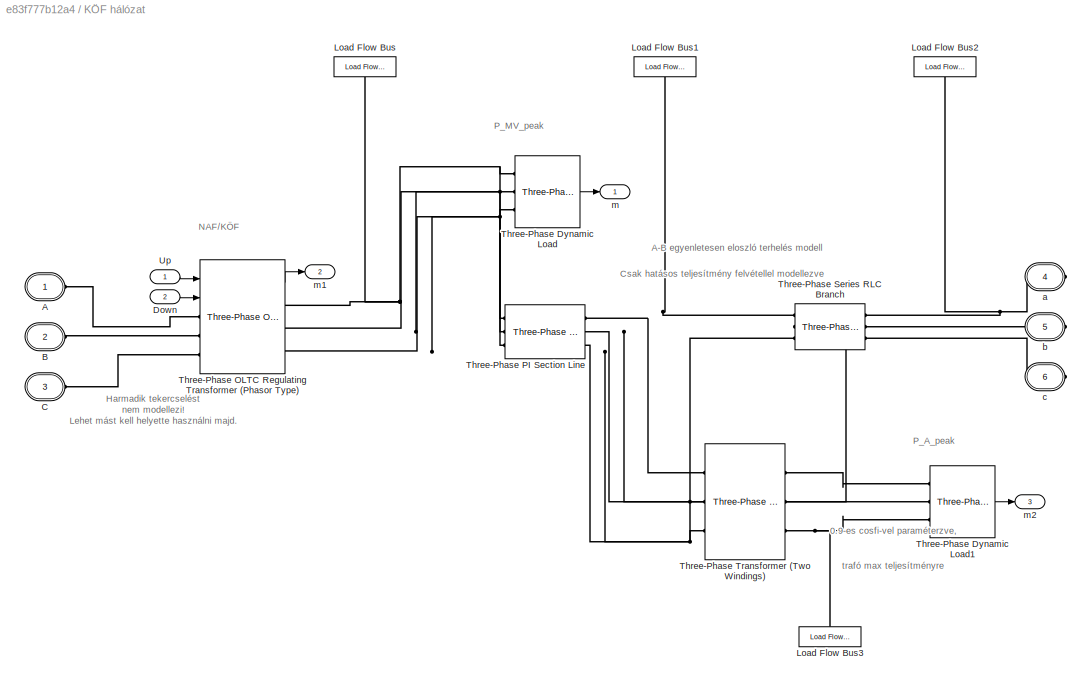
BLOCK [SubSystem] KÖF hálózat
  PortSchema = {"entries":[{"content":{"sides":[{"content":{"connectorIds":["In1","In2","LConn1","LConn2","LConn3"]},"type":"ConnectorPlacement.EquallySpacedRectSide","uuid":"37ce2fd1-cae8-4cd2-9c94-10009b6bc558"},{"content":{"connectorIds":["Out1","RConn1","RConn2","RConn3","Out2","Out3"],"side":"RIGHT"},"type":"ConnectorPlacement.EquallySpacedRectSide","uuid":"c768cafc-f450-48a1-a9e5-d1936ffd208f"},{"content":...<+316ch>
  Ports = [2, 3, 0, 0, 0, 3, 3]
  RequestExecContextInheritance = off
BLOCK [PMIOPort] KÖF hálózat/A
  Side = Left
  Tag = PMCPort
BLOCK [PMIOPort] KÖF hálózat/B
  Port = 2
  Side = Left
  Tag = PMCPort
BLOCK [PMIOPort] KÖF hálózat/C
  Port = 3
  Side = Left
  Tag = PMCPort
BLOCK [Inport] KÖF hálózat/Down
  Port = 2
BLOCK [Reference] KÖF hálózat/Load Flow Bus  REF=powerlib/Measurements/Load Flow Bus
  AttributesFormatString = %<ID>\n%<Vbase>V\n%<VLF>pu\n%<angleLF>deg.
  NameLocation = right
  Ports = [0, 0, 0, 0, 0, 1]
  SourceBlock = powerlib/Measurements/Load Flow Bus
  SourceProductBaseCode = PS
  SourceType = Load Flow Bus
BLOCK [Reference] KÖF hálózat/Load Flow Bus1  REF=powerlib/Measurements/Load Flow Bus
  AttributesFormatString = %<ID>\n%<Vbase>V\n%<VLF>pu\n%<angleLF>deg.
  NameLocation = right
  Ports = [0, 0, 0, 0, 0, 1]
  SourceBlock = powerlib/Measurements/Load Flow Bus
  SourceProductBaseCode = PS
  SourceType = Load Flow Bus
BLOCK [Reference] KÖF hálózat/Load Flow Bus2  REF=powerlib/Measurements/Load Flow Bus
  AttributesFormatString = %<ID>\n%<Vbase>V\n%<VLF>pu\n%<angleLF>deg.
  NameLocation = right
  Ports = [0, 0, 0, 0, 0, 1]
  SourceBlock = powerlib/Measurements/Load Flow Bus
  SourceProductBaseCode = PS
  SourceType = Load Flow Bus
BLOCK [Reference] KÖF hálózat/Load Flow Bus3  REF=powerlib/Measurements/Load Flow Bus
  AttributesFormatString = %<ID>\n%<Vbase>V\n%<VLF>pu\n%<angleLF>deg.
  NameLocation = left
  Ports = [0, 0, 0, 0, 0, 1]
  SourceBlock = powerlib/Measurements/Load Flow Bus
  SourceProductBaseCode = PS
  SourceType = Load Flow Bus
BLOCK [Reference] KÖF hálózat/Three-Phase Dynamic Load  REF=powerlib/Elements/Three-Phase
Dynamic Load
  Ports = [0, 1, 0, 0, 0, 3]
  SourceBlock = powerlib/Elements/Three-Phase\nDynamic Load
  SourceProductBaseCode = PS
  SourceType = Three-Phase Dynamic Load
BLOCK [Reference] KÖF hálózat/Three-Phase Dynamic Load1  REF=powerlib/Elements/Three-Phase
Dynamic Load
  Ports = [0, 1, 0, 0, 0, 3]
  SourceBlock = powerlib/Elements/Three-Phase\nDynamic Load
  SourceProductBaseCode = PS
  SourceType = Three-Phase Dynamic Load
BLOCK [Reference] KÖF hálózat/Three-Phase OLTC Regulating Transformer (Phasor Type)  REF=factslib/Transformers/Three-Phase OLTC
Regulating Transformer
(Phasor Type)
  Ports = [2, 1, 0, 0, 0, 3, 3]
  SourceBlock = factslib/Transformers/Three-Phase OLTC\nRegulating Transformer\n(Phasor Type)
  SourceProductBaseCode = PS
  SourceType = Three-Phase OLTC Regulating Transformer (Phasor Type)
BLOCK [Reference] KÖF hálózat/Three-Phase PI Section Line  REF=powerlib/Elements/Three-Phase
PI Section Line
  AttributesFormatString = \n
  Ports = [0, 0, 0, 0, 0, 3, 3]
  SourceBlock = powerlib/Elements/Three-Phase\nPI Section Line
  SourceProductBaseCode = PS
  SourceType = Three-Phase PI Section Line
BLOCK [Reference] KÖF hálózat/Three-Phase Series RLC Branch  REF=powerlib/Elements/Three-Phase
Series RLC Branch
  AttributesFormatString = \n
  Ports = [0, 0, 0, 0, 0, 3, 3]
  SourceBlock = powerlib/Elements/Three-Phase\nSeries RLC Branch
  SourceProductBaseCode = PS
  SourceType = Three-Phase Series RLC Branch
BLOCK [Reference] KÖF hálózat/Three-Phase Transformer (Two Windings)  REF=powerlib/Elements/Three-Phase
Transformer
(Two Windings)
  Ports = [0, 0, 0, 0, 0, 3, 3]
  SourceBlock = powerlib/Elements/Three-Phase\nTransformer\n(Two Windings)
  SourceProductBaseCode = PS
  SourceType = Three-Phase Transformer (Two Windings)
BLOCK [Inport] KÖF hálózat/Up
BLOCK [PMIOPort] KÖF hálózat/a
  Port = 4
  Side = Right
  Tag = PMCPort
BLOCK [PMIOPort] KÖF hálózat/b
  Port = 5
  Side = Right
  Tag = PMCPort
BLOCK [PMIOPort] KÖF hálózat/c
  Port = 6
  Side = Right
  Tag = PMCPort
BLOCK [Outport] KÖF hálózat/m
BLOCK [Outport] KÖF hálózat/m1
  Port = 2
BLOCK [Outport] KÖF hálózat/m2
  Port = 3
BLOCK [Reference] Mögöttes hálózat  REF=powerlib/Machines/Simplified Synchronous
Machine SI Units
  Ports = [2, 1, 0, 0, 0, 0, 3]
  SourceBlock = powerlib/Machines/Simplified Synchronous\nMachine SI Units
  SourceProductBaseCode = PS
  SourceType = Simplified Synchronous Machine
BLOCK [Reference] powergui  REF=powerlib/powergui
  Ports = []
  Priority = 1
  SourceBlock = powerlib/powergui
  SourceProductBaseCode = PS
  SourceType = PSB option menu block
ANNOTATION KIF hálózat: 3x25+10+35
ANNOTATION KIF hálózat: 4x25
ANNOTATION KIF hálózat: 4x25+16
ANNOTATION KIF hálózat: 4x50+25
ANNOTATION KIF hálózat: 4x70+16
ANNOTATION KIF hálózat: 4x95+25
ANNOTATION KIF hálózat: 5x16
ANNOTATION KIF hálózat: Bacsó B. utca ------------------------------------------------------------------
ANNOTATION KIF hálózat: Hunyadi utca -----------------------------------------------------------------------------------------------------------------------------------------------------------------------------------------------------------------------
ANNOTATION KIF hálózat: Jókai utca ----------------------------------------------------------------------------------------
ANNOTATION KIF hálózat: József Attila utca ----------------------------------------------------------------------------
ANNOTATION KIF hálózat: Kossuth utca -----------------------------------------------------------------------------------------
ANNOTATION KIF hálózat: Micsuri utca --------------------------------------------------------
ANNOTATION KIF hálózat: Somogyi utca ------------------------------------------------------------------
ANNOTATION KIF hálózat: Temető ----------------------------------------------------------------------------
ANNOTATION KIF hálózat: B10
ANNOTATION KIF hálózat: B11
ANNOTATION KIF hálózat: B2
ANNOTATION KIF hálózat: B3
ANNOTATION KIF hálózat: B4
ANNOTATION KIF hálózat: B5
ANNOTATION KIF hálózat: B6
ANNOTATION KIF hálózat: B7
ANNOTATION KIF hálózat: B8
ANNOTATION KIF hálózat: KÖF/KIF
ANNOTATION KIF hálózat: B1
ANNOTATION KIF hálózat: B9
ANNOTATION KIF hálózat/Biztosító: B1
ANNOTATION KIF hálózat/Biztosító10: B1
ANNOTATION KIF hálózat/Biztosító2: B1
ANNOTATION KIF hálózat/Biztosító3: B1
ANNOTATION KIF hálózat/Biztosító4: B1
ANNOTATION KIF hálózat/Biztosító5: B1
ANNOTATION KIF hálózat/Biztosító6: B1
ANNOTATION KIF hálózat/Biztosító7: B1
ANNOTATION KIF hálózat/Biztosító8: B1
ANNOTATION KIF hálózat/Biztosító9: B1
ANNOTATION KÖF hálózat: Harmadik tekercselést nem modellezi! Lehet mást kell helyette használni majd.
ANNOTATION KÖF hálózat: 0.9-es cosfi-vel paraméterzve, trafó max teljesítményre
ANNOTATION KÖF hálózat: P_A_peak
ANNOTATION KÖF hálózat: A-B egyenletesen eloszló terhelés modell
ANNOTATION KÖF hálózat: NAF/KÖF
ANNOTATION KÖF hálózat: P_MV_peak
ANNOTATION KÖF hálózat: Csak hatásos teljesítmény felvétellel modellezve
LINE Constant1:1 -> Mögöttes hálózat:2
LINE Constant:1 -> Mögöttes hálózat:1
LINE KÖF hálózat/Down:1 -> KÖF hálózat/Three-Phase OLTC Regulating Transformer (Phasor Type):2
LINE KÖF hálózat/Three-Phase Dynamic Load1:1 -> KÖF hálózat/m2:1
LINE KÖF hálózat/Three-Phase Dynamic Load:1 -> KÖF hálózat/m:1
LINE KÖF hálózat/Three-Phase OLTC Regulating Transformer (Phasor Type):1 -> KÖF hálózat/m1:1
LINE KÖF hálózat/Up:1 -> KÖF hálózat/Three-Phase OLTC Regulating Transformer (Phasor Type):1
PLINE KIF hálózat/Biztosító/Fuse1:LConn1 -- KIF hálózat/Biztosító/Voltage-Current Simscape Interface (gnd)2:RConn1
PLINE KIF hálózat/Biztosító/Fuse1:RConn1 -- KIF hálózat/Biztosító/Voltage-Current Simscape Interface (gnd)3:RConn1
PLINE KIF hálózat/Biztosító/Fuse2:LConn1 -- KIF hálózat/Biztosító/Voltage-Current Simscape Interface (gnd)4:RConn1
PLINE KIF hálózat/Biztosító/Fuse2:RConn1 -- KIF hálózat/Biztosító/Voltage-Current Simscape Interface (gnd)5:RConn1
PLINE KIF hálózat/Biztosító/Fuse:LConn1 -- KIF hálózat/Biztosító/Voltage-Current Simscape Interface (gnd):RConn1
PLINE KIF hálózat/Biztosító/Fuse:RConn1 -- KIF hálózat/Biztosító/Voltage-Current Simscape Interface (gnd)1:RConn1
PLINE KIF hálózat/Biztosító/Voltage-Current Simscape Interface (gnd)1:LConn1 -- KIF hálózat/Biztosító/sps:RConn1
PLINE KIF hálózat/Biztosító/Voltage-Current Simscape Interface (gnd)2:LConn1 -- KIF hálózat/Biztosító/sps3:RConn1
PLINE KIF hálózat/Biztosító/Voltage-Current Simscape Interface (gnd)3:LConn1 -- KIF hálózat/Biztosító/sps2:RConn1
PLINE KIF hálózat/Biztosító/Voltage-Current Simscape Interface (gnd)4:LConn1 -- KIF hálózat/Biztosító/sps5:RConn1
PLINE KIF hálózat/Biztosító/Voltage-Current Simscape Interface (gnd)5:LConn1 -- KIF hálózat/Biztosító/sps4:RConn1
PLINE KIF hálózat/Biztosító/Voltage-Current Simscape Interface (gnd):LConn1 -- KIF hálózat/Biztosító/sps1:RConn1
PLINE KIF hálózat/Biztosító1/Fuse1:LConn1 -- KIF hálózat/Biztosító1/Voltage-Current Simscape Interface (gnd)2:RConn1
PLINE KIF hálózat/Biztosító1/Fuse1:RConn1 -- KIF hálózat/Biztosító1/Voltage-Current Simscape Interface (gnd)3:RConn1
PLINE KIF hálózat/Biztosító1/Fuse2:LConn1 -- KIF hálózat/Biztosító1/Voltage-Current Simscape Interface (gnd)4:RConn1
PLINE KIF hálózat/Biztosító1/Fuse2:RConn1 -- KIF hálózat/Biztosító1/Voltage-Current Simscape Interface (gnd)5:RConn1
PLINE KIF hálózat/Biztosító1/Fuse:LConn1 -- KIF hálózat/Biztosító1/Voltage-Current Simscape Interface (gnd):RConn1
PLINE KIF hálózat/Biztosító1/Fuse:RConn1 -- KIF hálózat/Biztosító1/Voltage-Current Simscape Interface (gnd)1:RConn1
PLINE KIF hálózat/Biztosító1/Voltage-Current Simscape Interface (gnd)1:LConn1 -- KIF hálózat/Biztosító1/sps:RConn1
PLINE KIF hálózat/Biztosító1/Voltage-Current Simscape Interface (gnd)2:LConn1 -- KIF hálózat/Biztosító1/sps3:RConn1
PLINE KIF hálózat/Biztosító1/Voltage-Current Simscape Interface (gnd)3:LConn1 -- KIF hálózat/Biztosító1/sps2:RConn1
PLINE KIF hálózat/Biztosító1/Voltage-Current Simscape Interface (gnd)4:LConn1 -- KIF hálózat/Biztosító1/sps5:RConn1
PLINE KIF hálózat/Biztosító1/Voltage-Current Simscape Interface (gnd)5:LConn1 -- KIF hálózat/Biztosító1/sps4:RConn1
PLINE KIF hálózat/Biztosító1/Voltage-Current Simscape Interface (gnd):LConn1 -- KIF hálózat/Biztosító1/sps1:RConn1
PLINE KIF hálózat/Biztosító10/Fuse1:LConn1 -- KIF hálózat/Biztosító10/Voltage-Current Simscape Interface (gnd)2:RConn1
PLINE KIF hálózat/Biztosító10/Fuse1:RConn1 -- KIF hálózat/Biztosító10/Voltage-Current Simscape Interface (gnd)3:RConn1
PLINE KIF hálózat/Biztosító10/Fuse2:LConn1 -- KIF hálózat/Biztosító10/Voltage-Current Simscape Interface (gnd)4:RConn1
PLINE KIF hálózat/Biztosító10/Fuse2:RConn1 -- KIF hálózat/Biztosító10/Voltage-Current Simscape Interface (gnd)5:RConn1
PLINE KIF hálózat/Biztosító10/Fuse:LConn1 -- KIF hálózat/Biztosító10/Voltage-Current Simscape Interface (gnd):RConn1
PLINE KIF hálózat/Biztosító10/Fuse:RConn1 -- KIF hálózat/Biztosító10/Voltage-Current Simscape Interface (gnd)1:RConn1
PLINE KIF hálózat/Biztosító10/Voltage-Current Simscape Interface (gnd)1:LConn1 -- KIF hálózat/Biztosító10/sps:RConn1
PLINE KIF hálózat/Biztosító10/Voltage-Current Simscape Interface (gnd)2:LConn1 -- KIF hálózat/Biztosító10/sps3:RConn1
PLINE KIF hálózat/Biztosító10/Voltage-Current Simscape Interface (gnd)3:LConn1 -- KIF hálózat/Biztosító10/sps2:RConn1
PLINE KIF hálózat/Biztosító10/Voltage-Current Simscape Interface (gnd)4:LConn1 -- KIF hálózat/Biztosító10/sps5:RConn1
PLINE KIF hálózat/Biztosító10/Voltage-Current Simscape Interface (gnd)5:LConn1 -- KIF hálózat/Biztosító10/sps4:RConn1
PLINE KIF hálózat/Biztosító10/Voltage-Current Simscape Interface (gnd):LConn1 -- KIF hálózat/Biztosító10/sps1:RConn1
PNET net1: KIF hálózat/Biztosító10:LConn1 -- KIF hálózat/Biztosító9:RConn1 -- KIF hálózat/Three-Phase PI Section Line18:RConn1
PNET net2: KIF hálózat/Biztosító10:LConn2 -- KIF hálózat/Biztosító9:RConn2 -- KIF hálózat/Three-Phase PI Section Line18:RConn2
PNET net3: KIF hálózat/Biztosító10:LConn3 -- KIF hálózat/Biztosító9:RConn3 -- KIF hálózat/Three-Phase PI Section Line18:RConn3
PLINE KIF hálózat/Biztosító10:RConn1 -- KIF hálózat/Three-Phase PI Section Line19:LConn1
PLINE KIF hálózat/Biztosító10:RConn2 -- KIF hálózat/Three-Phase PI Section Line19:LConn2
PLINE KIF hálózat/Biztosító10:RConn3 -- KIF hálózat/Three-Phase PI Section Line19:LConn3
PNET net4: KIF hálózat/Biztosító1:LConn1 -- KIF hálózat/Three-Phase PI Section Line2:LConn1 -- KIF hálózat/Three-Phase PI Section Line:RConn1
PNET net5: KIF hálózat/Biztosító1:LConn2 -- KIF hálózat/Three-Phase PI Section Line2:LConn2 -- KIF hálózat/Three-Phase PI Section Line:RConn2
PNET net6: KIF hálózat/Biztosító1:LConn3 -- KIF hálózat/Three-Phase PI Section Line2:LConn3 -- KIF hálózat/Three-Phase PI Section Line:RConn3
PLINE KIF hálózat/Biztosító1:RConn1 -- KIF hálózat/Variable Resistor:LConn1
PLINE KIF hálózat/Biztosító1:RConn2 -- KIF hálózat/Variable Resistor1:LConn1
PLINE KIF hálózat/Biztosító1:RConn3 -- KIF hálózat/Variable Resistor2:LConn1
PLINE KIF hálózat/Biztosító2/Fuse1:LConn1 -- KIF hálózat/Biztosító2/Voltage-Current Simscape Interface (gnd)2:RConn1
PLINE KIF hálózat/Biztosító2/Fuse1:RConn1 -- KIF hálózat/Biztosító2/Voltage-Current Simscape Interface (gnd)3:RConn1
PLINE KIF hálózat/Biztosító2/Fuse2:LConn1 -- KIF hálózat/Biztosító2/Voltage-Current Simscape Interface (gnd)4:RConn1
PLINE KIF hálózat/Biztosító2/Fuse2:RConn1 -- KIF hálózat/Biztosító2/Voltage-Current Simscape Interface (gnd)5:RConn1
PLINE KIF hálózat/Biztosító2/Fuse:LConn1 -- KIF hálózat/Biztosító2/Voltage-Current Simscape Interface (gnd):RConn1
PLINE KIF hálózat/Biztosító2/Fuse:RConn1 -- KIF hálózat/Biztosító2/Voltage-Current Simscape Interface (gnd)1:RConn1
PLINE KIF hálózat/Biztosító2/Voltage-Current Simscape Interface (gnd)1:LConn1 -- KIF hálózat/Biztosító2/sps:RConn1
PLINE KIF hálózat/Biztosító2/Voltage-Current Simscape Interface (gnd)2:LConn1 -- KIF hálózat/Biztosító2/sps3:RConn1
PLINE KIF hálózat/Biztosító2/Voltage-Current Simscape Interface (gnd)3:LConn1 -- KIF hálózat/Biztosító2/sps2:RConn1
PLINE KIF hálózat/Biztosító2/Voltage-Current Simscape Interface (gnd)4:LConn1 -- KIF hálózat/Biztosító2/sps5:RConn1
PLINE KIF hálózat/Biztosító2/Voltage-Current Simscape Interface (gnd)5:LConn1 -- KIF hálózat/Biztosító2/sps4:RConn1
PLINE KIF hálózat/Biztosító2/Voltage-Current Simscape Interface (gnd):LConn1 -- KIF hálózat/Biztosító2/sps1:RConn1
PNET net7: KIF hálózat/Biztosító2:LConn1 -- KIF hálózat/Biztosító6:LConn1 -- KIF hálózat/Biztosító:LConn1 -- KIF hálózat/Zigzag Phase-Shifting Transformer:LConn1
PNET net8: KIF hálózat/Biztosító2:LConn2 -- KIF hálózat/Biztosító6:LConn2 -- KIF hálózat/Biztosító:LConn2 -- KIF hálózat/Zigzag Phase-Shifting Transformer:LConn2
PNET net9: KIF hálózat/Biztosító2:LConn3 -- KIF hálózat/Biztosító6:LConn3 -- KIF hálózat/Biztosító:LConn3 -- KIF hálózat/Zigzag Phase-Shifting Transformer:LConn3
PLINE KIF hálózat/Biztosító2:RConn1 -- KIF hálózat/Three-Phase PI Section Line5:LConn1
PLINE KIF hálózat/Biztosító2:RConn2 -- KIF hálózat/Three-Phase PI Section Line5:LConn2
PLINE KIF hálózat/Biztosító2:RConn3 -- KIF hálózat/Three-Phase PI Section Line5:LConn3
PLINE KIF hálózat/Biztosító3/Fuse1:LConn1 -- KIF hálózat/Biztosító3/Voltage-Current Simscape Interface (gnd)2:RConn1
PLINE KIF hálózat/Biztosító3/Fuse1:RConn1 -- KIF hálózat/Biztosító3/Voltage-Current Simscape Interface (gnd)3:RConn1
PLINE KIF hálózat/Biztosító3/Fuse2:LConn1 -- KIF hálózat/Biztosító3/Voltage-Current Simscape Interface (gnd)4:RConn1
PLINE KIF hálózat/Biztosító3/Fuse2:RConn1 -- KIF hálózat/Biztosító3/Voltage-Current Simscape Interface (gnd)5:RConn1
PLINE KIF hálózat/Biztosító3/Fuse:LConn1 -- KIF hálózat/Biztosító3/Voltage-Current Simscape Interface (gnd):RConn1
PLINE KIF hálózat/Biztosító3/Fuse:RConn1 -- KIF hálózat/Biztosító3/Voltage-Current Simscape Interface (gnd)1:RConn1
PLINE KIF hálózat/Biztosító3/Voltage-Current Simscape Interface (gnd)1:LConn1 -- KIF hálózat/Biztosító3/sps:RConn1
PLINE KIF hálózat/Biztosító3/Voltage-Current Simscape Interface (gnd)2:LConn1 -- KIF hálózat/Biztosító3/sps3:RConn1
PLINE KIF hálózat/Biztosító3/Voltage-Current Simscape Interface (gnd)3:LConn1 -- KIF hálózat/Biztosító3/sps2:RConn1
PLINE KIF hálózat/Biztosító3/Voltage-Current Simscape Interface (gnd)4:LConn1 -- KIF hálózat/Biztosító3/sps5:RConn1
PLINE KIF hálózat/Biztosító3/Voltage-Current Simscape Interface (gnd)5:LConn1 -- KIF hálózat/Biztosító3/sps4:RConn1
PLINE KIF hálózat/Biztosító3/Voltage-Current Simscape Interface (gnd):LConn1 -- KIF hálózat/Biztosító3/sps1:RConn1
PNET net10: KIF hálózat/Biztosító3:LConn1 -- KIF hálózat/Three-Phase PI Section Line5:RConn1 -- KIF hálózat/Three-Phase PI Section Line9:LConn1
PNET net11: KIF hálózat/Biztosító3:LConn2 -- KIF hálózat/Three-Phase PI Section Line5:RConn2 -- KIF hálózat/Three-Phase PI Section Line9:LConn2
PNET net12: KIF hálózat/Biztosító3:LConn3 -- KIF hálózat/Three-Phase PI Section Line5:RConn3 -- KIF hálózat/Three-Phase PI Section Line9:LConn3
PLINE KIF hálózat/Biztosító3:RConn1 -- KIF hálózat/Three-Phase PI Section Line6:LConn1
PLINE KIF hálózat/Biztosító3:RConn2 -- KIF hálózat/Three-Phase PI Section Line6:LConn2
PLINE KIF hálózat/Biztosító3:RConn3 -- KIF hálózat/Three-Phase PI Section Line6:LConn3
PLINE KIF hálózat/Biztosító4/Fuse1:LConn1 -- KIF hálózat/Biztosító4/Voltage-Current Simscape Interface (gnd)2:RConn1
PLINE KIF hálózat/Biztosító4/Fuse1:RConn1 -- KIF hálózat/Biztosító4/Voltage-Current Simscape Interface (gnd)3:RConn1
PLINE KIF hálózat/Biztosító4/Fuse2:LConn1 -- KIF hálózat/Biztosító4/Voltage-Current Simscape Interface (gnd)4:RConn1
PLINE KIF hálózat/Biztosító4/Fuse2:RConn1 -- KIF hálózat/Biztosító4/Voltage-Current Simscape Interface (gnd)5:RConn1
PLINE KIF hálózat/Biztosító4/Fuse:LConn1 -- KIF hálózat/Biztosító4/Voltage-Current Simscape Interface (gnd):RConn1
PLINE KIF hálózat/Biztosító4/Fuse:RConn1 -- KIF hálózat/Biztosító4/Voltage-Current Simscape Interface (gnd)1:RConn1
PLINE KIF hálózat/Biztosító4/Voltage-Current Simscape Interface (gnd)1:LConn1 -- KIF hálózat/Biztosító4/sps:RConn1
PLINE KIF hálózat/Biztosító4/Voltage-Current Simscape Interface (gnd)2:LConn1 -- KIF hálózat/Biztosító4/sps3:RConn1
PLINE KIF hálózat/Biztosító4/Voltage-Current Simscape Interface (gnd)3:LConn1 -- KIF hálózat/Biztosító4/sps2:RConn1
PLINE KIF hálózat/Biztosító4/Voltage-Current Simscape Interface (gnd)4:LConn1 -- KIF hálózat/Biztosító4/sps5:RConn1
PLINE KIF hálózat/Biztosító4/Voltage-Current Simscape Interface (gnd)5:LConn1 -- KIF hálózat/Biztosító4/sps4:RConn1
PLINE KIF hálózat/Biztosító4/Voltage-Current Simscape Interface (gnd):LConn1 -- KIF hálózat/Biztosító4/sps1:RConn1
PNET net13: KIF hálózat/Biztosító4:LConn1 -- KIF hálózat/Three-Phase PI Section Line11:LConn1 -- KIF hálózat/Three-Phase PI Section Line9:RConn1
PNET net14: KIF hálózat/Biztosító4:LConn2 -- KIF hálózat/Three-Phase PI Section Line11:LConn2 -- KIF hálózat/Three-Phase PI Section Line9:RConn2
PNET net15: KIF hálózat/Biztosító4:LConn3 -- KIF hálózat/Three-Phase PI Section Line11:LConn3 -- KIF hálózat/Three-Phase PI Section Line9:RConn3
PLINE KIF hálózat/Biztosító4:RConn1 -- KIF hálózat/Variable Resistor3:LConn1
PLINE KIF hálózat/Biztosító4:RConn2 -- KIF hálózat/Variable Resistor4:LConn1
PLINE KIF hálózat/Biztosító4:RConn3 -- KIF hálózat/Variable Resistor5:LConn1
PLINE KIF hálózat/Biztosító5/Fuse1:LConn1 -- KIF hálózat/Biztosító5/Voltage-Current Simscape Interface (gnd)2:RConn1
PLINE KIF hálózat/Biztosító5/Fuse1:RConn1 -- KIF hálózat/Biztosító5/Voltage-Current Simscape Interface (gnd)3:RConn1
PLINE KIF hálózat/Biztosító5/Fuse2:LConn1 -- KIF hálózat/Biztosító5/Voltage-Current Simscape Interface (gnd)4:RConn1
PLINE KIF hálózat/Biztosító5/Fuse2:RConn1 -- KIF hálózat/Biztosító5/Voltage-Current Simscape Interface (gnd)5:RConn1
PLINE KIF hálózat/Biztosító5/Fuse:LConn1 -- KIF hálózat/Biztosító5/Voltage-Current Simscape Interface (gnd):RConn1
PLINE KIF hálózat/Biztosító5/Fuse:RConn1 -- KIF hálózat/Biztosító5/Voltage-Current Simscape Interface (gnd)1:RConn1
PLINE KIF hálózat/Biztosító5/Voltage-Current Simscape Interface (gnd)1:LConn1 -- KIF hálózat/Biztosító5/sps:RConn1
PLINE KIF hálózat/Biztosító5/Voltage-Current Simscape Interface (gnd)2:LConn1 -- KIF hálózat/Biztosító5/sps3:RConn1
PLINE KIF hálózat/Biztosító5/Voltage-Current Simscape Interface (gnd)3:LConn1 -- KIF hálózat/Biztosító5/sps2:RConn1
PLINE KIF hálózat/Biztosító5/Voltage-Current Simscape Interface (gnd)4:LConn1 -- KIF hálózat/Biztosító5/sps5:RConn1
PLINE KIF hálózat/Biztosító5/Voltage-Current Simscape Interface (gnd)5:LConn1 -- KIF hálózat/Biztosító5/sps4:RConn1
PLINE KIF hálózat/Biztosító5/Voltage-Current Simscape Interface (gnd):LConn1 -- KIF hálózat/Biztosító5/sps1:RConn1
PNET net16: KIF hálózat/Biztosító5:LConn1 -- KIF hálózat/Three-Phase PI Section Line11:RConn1 -- KIF hálózat/Three-Phase PI Section Line13:LConn1
PNET net17: KIF hálózat/Biztosító5:LConn2 -- KIF hálózat/Three-Phase PI Section Line11:RConn2 -- KIF hálózat/Three-Phase PI Section Line13:LConn2
PNET net18: KIF hálózat/Biztosító5:LConn3 -- KIF hálózat/Three-Phase PI Section Line11:RConn3 -- KIF hálózat/Three-Phase PI Section Line13:LConn3
PLINE KIF hálózat/Biztosító5:RConn1 -- KIF hálózat/Variable Resistor6:LConn1
PLINE KIF hálózat/Biztosító5:RConn2 -- KIF hálózat/Variable Resistor7:LConn1
PLINE KIF hálózat/Biztosító5:RConn3 -- KIF hálózat/Variable Resistor8:LConn1
PLINE KIF hálózat/Biztosító6/Fuse1:LConn1 -- KIF hálózat/Biztosító6/Voltage-Current Simscape Interface (gnd)2:RConn1
PLINE KIF hálózat/Biztosító6/Fuse1:RConn1 -- KIF hálózat/Biztosító6/Voltage-Current Simscape Interface (gnd)3:RConn1
PLINE KIF hálózat/Biztosító6/Fuse2:LConn1 -- KIF hálózat/Biztosító6/Voltage-Current Simscape Interface (gnd)4:RConn1
PLINE KIF hálózat/Biztosító6/Fuse2:RConn1 -- KIF hálózat/Biztosító6/Voltage-Current Simscape Interface (gnd)5:RConn1
PLINE KIF hálózat/Biztosító6/Fuse:LConn1 -- KIF hálózat/Biztosító6/Voltage-Current Simscape Interface (gnd):RConn1
PLINE KIF hálózat/Biztosító6/Fuse:RConn1 -- KIF hálózat/Biztosító6/Voltage-Current Simscape Interface (gnd)1:RConn1
PLINE KIF hálózat/Biztosító6/Voltage-Current Simscape Interface (gnd)1:LConn1 -- KIF hálózat/Biztosító6/sps:RConn1
PLINE KIF hálózat/Biztosító6/Voltage-Current Simscape Interface (gnd)2:LConn1 -- KIF hálózat/Biztosító6/sps3:RConn1
PLINE KIF hálózat/Biztosító6/Voltage-Current Simscape Interface (gnd)3:LConn1 -- KIF hálózat/Biztosító6/sps2:RConn1
PLINE KIF hálózat/Biztosító6/Voltage-Current Simscape Interface (gnd)4:LConn1 -- KIF hálózat/Biztosító6/sps5:RConn1
PLINE KIF hálózat/Biztosító6/Voltage-Current Simscape Interface (gnd)5:LConn1 -- KIF hálózat/Biztosító6/sps4:RConn1
PLINE KIF hálózat/Biztosító6/Voltage-Current Simscape Interface (gnd):LConn1 -- KIF hálózat/Biztosító6/sps1:RConn1
PLINE KIF hálózat/Biztosító6:RConn1 -- KIF hálózat/Three-Phase PI Section Line14:RConn1
PLINE KIF hálózat/Biztosító6:RConn2 -- KIF hálózat/Three-Phase PI Section Line14:RConn2
PLINE KIF hálózat/Biztosító6:RConn3 -- KIF hálózat/Three-Phase PI Section Line14:RConn3
PLINE KIF hálózat/Biztosító7/Fuse1:LConn1 -- KIF hálózat/Biztosító7/Voltage-Current Simscape Interface (gnd)2:RConn1
PLINE KIF hálózat/Biztosító7/Fuse1:RConn1 -- KIF hálózat/Biztosító7/Voltage-Current Simscape Interface (gnd)3:RConn1
PLINE KIF hálózat/Biztosító7/Fuse2:LConn1 -- KIF hálózat/Biztosító7/Voltage-Current Simscape Interface (gnd)4:RConn1
PLINE KIF hálózat/Biztosító7/Fuse2:RConn1 -- KIF hálózat/Biztosító7/Voltage-Current Simscape Interface (gnd)5:RConn1
PLINE KIF hálózat/Biztosító7/Fuse:LConn1 -- KIF hálózat/Biztosító7/Voltage-Current Simscape Interface (gnd):RConn1
PLINE KIF hálózat/Biztosító7/Fuse:RConn1 -- KIF hálózat/Biztosító7/Voltage-Current Simscape Interface (gnd)1:RConn1
PLINE KIF hálózat/Biztosító7/Voltage-Current Simscape Interface (gnd)1:LConn1 -- KIF hálózat/Biztosító7/sps:RConn1
PLINE KIF hálózat/Biztosító7/Voltage-Current Simscape Interface (gnd)2:LConn1 -- KIF hálózat/Biztosító7/sps3:RConn1
PLINE KIF hálózat/Biztosító7/Voltage-Current Simscape Interface (gnd)3:LConn1 -- KIF hálózat/Biztosító7/sps2:RConn1
PLINE KIF hálózat/Biztosító7/Voltage-Current Simscape Interface (gnd)4:LConn1 -- KIF hálózat/Biztosító7/sps5:RConn1
PLINE KIF hálózat/Biztosító7/Voltage-Current Simscape Interface (gnd)5:LConn1 -- KIF hálózat/Biztosító7/sps4:RConn1
PLINE KIF hálózat/Biztosító7/Voltage-Current Simscape Interface (gnd):LConn1 -- KIF hálózat/Biztosító7/sps1:RConn1
PLINE KIF hálózat/Biztosító7:LConn1 -- KIF hálózat/Variable Resistor15:LConn1
PLINE KIF hálózat/Biztosító7:LConn2 -- KIF hálózat/Variable Resistor16:LConn1
PLINE KIF hálózat/Biztosító7:LConn3 -- KIF hálózat/Variable Resistor17:LConn1
PLINE KIF hálózat/Biztosító7:RConn1 -- KIF hálózat/Variable Resistor9:LConn1
PLINE KIF hálózat/Biztosító7:RConn2 -- KIF hálózat/Variable Resistor10:LConn1
PLINE KIF hálózat/Biztosító7:RConn3 -- KIF hálózat/Variable Resistor11:LConn1
PLINE KIF hálózat/Biztosító8/Fuse1:LConn1 -- KIF hálózat/Biztosító8/Voltage-Current Simscape Interface (gnd)2:RConn1
PLINE KIF hálózat/Biztosító8/Fuse1:RConn1 -- KIF hálózat/Biztosító8/Voltage-Current Simscape Interface (gnd)3:RConn1
PLINE KIF hálózat/Biztosító8/Fuse2:LConn1 -- KIF hálózat/Biztosító8/Voltage-Current Simscape Interface (gnd)4:RConn1
PLINE KIF hálózat/Biztosító8/Fuse2:RConn1 -- KIF hálózat/Biztosító8/Voltage-Current Simscape Interface (gnd)5:RConn1
PLINE KIF hálózat/Biztosító8/Fuse:LConn1 -- KIF hálózat/Biztosító8/Voltage-Current Simscape Interface (gnd):RConn1
PLINE KIF hálózat/Biztosító8/Fuse:RConn1 -- KIF hálózat/Biztosító8/Voltage-Current Simscape Interface (gnd)1:RConn1
PLINE KIF hálózat/Biztosító8/Voltage-Current Simscape Interface (gnd)1:LConn1 -- KIF hálózat/Biztosító8/sps:RConn1
PLINE KIF hálózat/Biztosító8/Voltage-Current Simscape Interface (gnd)2:LConn1 -- KIF hálózat/Biztosító8/sps3:RConn1
PLINE KIF hálózat/Biztosító8/Voltage-Current Simscape Interface (gnd)3:LConn1 -- KIF hálózat/Biztosító8/sps2:RConn1
PLINE KIF hálózat/Biztosító8/Voltage-Current Simscape Interface (gnd)4:LConn1 -- KIF hálózat/Biztosító8/sps5:RConn1
PLINE KIF hálózat/Biztosító8/Voltage-Current Simscape Interface (gnd)5:LConn1 -- KIF hálózat/Biztosító8/sps4:RConn1
PLINE KIF hálózat/Biztosító8/Voltage-Current Simscape Interface (gnd):LConn1 -- KIF hálózat/Biztosító8/sps1:RConn1
PNET net19: KIF hálózat/Biztosító8:LConn1 -- KIF hálózat/Three-Phase PI Section Line14:LConn1 -- KIF hálózat/Three-Phase PI Section Line17:RConn1 -- KIF hálózat/Variable Resistor15:RConn1
PNET net20: KIF hálózat/Biztosító8:LConn2 -- KIF hálózat/Three-Phase PI Section Line14:LConn2 -- KIF hálózat/Three-Phase PI Section Line17:RConn2 -- KIF hálózat/Variable Resistor16:RConn1
PNET net21: KIF hálózat/Biztosító8:LConn3 -- KIF hálózat/Three-Phase PI Section Line14:LConn3 -- KIF hálózat/Three-Phase PI Section Line17:RConn3 -- KIF hálózat/Variable Resistor17:RConn1
PLINE KIF hálózat/Biztosító8:RConn1 -- KIF hálózat/Variable Resistor12:LConn1
PLINE KIF hálózat/Biztosító8:RConn2 -- KIF hálózat/Variable Resistor13:LConn1
PLINE KIF hálózat/Biztosító8:RConn3 -- KIF hálózat/Variable Resistor14:LConn1
PLINE KIF hálózat/Biztosító9/Fuse1:LConn1 -- KIF hálózat/Biztosító9/Voltage-Current Simscape Interface (gnd)2:RConn1
PLINE KIF hálózat/Biztosító9/Fuse1:RConn1 -- KIF hálózat/Biztosító9/Voltage-Current Simscape Interface (gnd)3:RConn1
PLINE KIF hálózat/Biztosító9/Fuse2:LConn1 -- KIF hálózat/Biztosító9/Voltage-Current Simscape Interface (gnd)4:RConn1
PLINE KIF hálózat/Biztosító9/Fuse2:RConn1 -- KIF hálózat/Biztosító9/Voltage-Current Simscape Interface (gnd)5:RConn1
PLINE KIF hálózat/Biztosító9/Fuse:LConn1 -- KIF hálózat/Biztosító9/Voltage-Current Simscape Interface (gnd):RConn1
PLINE KIF hálózat/Biztosító9/Fuse:RConn1 -- KIF hálózat/Biztosító9/Voltage-Current Simscape Interface (gnd)1:RConn1
PLINE KIF hálózat/Biztosító9/Voltage-Current Simscape Interface (gnd)1:LConn1 -- KIF hálózat/Biztosító9/sps:RConn1
PLINE KIF hálózat/Biztosító9/Voltage-Current Simscape Interface (gnd)2:LConn1 -- KIF hálózat/Biztosító9/sps3:RConn1
PLINE KIF hálózat/Biztosító9/Voltage-Current Simscape Interface (gnd)3:LConn1 -- KIF hálózat/Biztosító9/sps2:RConn1
PLINE KIF hálózat/Biztosító9/Voltage-Current Simscape Interface (gnd)4:LConn1 -- KIF hálózat/Biztosító9/sps5:RConn1
PLINE KIF hálózat/Biztosító9/Voltage-Current Simscape Interface (gnd)5:LConn1 -- KIF hálózat/Biztosító9/sps4:RConn1
PLINE KIF hálózat/Biztosító9/Voltage-Current Simscape Interface (gnd):LConn1 -- KIF hálózat/Biztosító9/sps1:RConn1
PLINE KIF hálózat/Biztosító9:LConn1 -- KIF hálózat/Three-Phase PI Section Line16:LConn1
PLINE KIF hálózat/Biztosító9:LConn2 -- KIF hálózat/Three-Phase PI Section Line16:LConn2
PLINE KIF hálózat/Biztosító9:LConn3 -- KIF hálózat/Three-Phase PI Section Line16:LConn3
PLINE KIF hálózat/Biztosító:RConn1 -- KIF hálózat/Three-Phase PI Section Line:LConn1
PLINE KIF hálózat/Biztosító:RConn2 -- KIF hálózat/Three-Phase PI Section Line:LConn2
PLINE KIF hálózat/Biztosító:RConn3 -- KIF hálózat/Three-Phase PI Section Line:LConn3
PLINE KIF hálózat/Connection Port1:RConn1 -- KIF hálózat/Zigzag Phase-Shifting Transformer:RConn2
PLINE KIF hálózat/Connection Port2:RConn1 -- KIF hálózat/Zigzag Phase-Shifting Transformer:RConn3
PLINE KIF hálózat/Connection Port3:RConn1 -- KIF hálózat/Zigzag Phase-Shifting Transformer:RConn1
PLINE KIF hálózat/Ground1:LConn1 -- KIF hálózat/Grounding Transformer 1:RConn1
PLINE KIF hálózat/Ground2:LConn1 -- KIF hálózat/Grounding Transformer 2:RConn1
PLINE KIF hálózat/Ground3:LConn1 -- KIF hálózat/Grounding Transformer 4:RConn1
PLINE KIF hálózat/Ground4:LConn1 -- KIF hálózat/Grounding Transformer 3:RConn1
PLINE KIF hálózat/Ground5:LConn1 -- KIF hálózat/Grounding Transformer 6:RConn1
PLINE KIF hálózat/Ground6:LConn1 -- KIF hálózat/Grounding Transformer 7:RConn1
PLINE KIF hálózat/Ground7:LConn1 -- KIF hálózat/Grounding Transformer 5:RConn1
PLINE KIF hálózat/Ground:LConn1 -- KIF hálózat/Grounding Transformer :RConn1
PLINE KIF hálózat/Grounding Transformer 1:LConn1 -- KIF hálózat/Three-Phase PI Section Line4:RConn1
PLINE KIF hálózat/Grounding Transformer 1:LConn2 -- KIF hálózat/Three-Phase PI Section Line4:RConn2
PLINE KIF hálózat/Grounding Transformer 1:LConn3 -- KIF hálózat/Three-Phase PI Section Line4:RConn3
PLINE KIF hálózat/Grounding Transformer 2:LConn1 -- KIF hálózat/Three-Phase PI Section Line7:RConn1
PLINE KIF hálózat/Grounding Transformer 2:LConn2 -- KIF hálózat/Three-Phase PI Section Line7:RConn2
PLINE KIF hálózat/Grounding Transformer 2:LConn3 -- KIF hálózat/Three-Phase PI Section Line7:RConn3
PLINE KIF hálózat/Grounding Transformer 3:LConn1 -- KIF hálózat/Three-Phase PI Section Line12:RConn1
PLINE KIF hálózat/Grounding Transformer 3:LConn2 -- KIF hálózat/Three-Phase PI Section Line12:RConn2
PLINE KIF hálózat/Grounding Transformer 3:LConn3 -- KIF hálózat/Three-Phase PI Section Line12:RConn3
PLINE KIF hálózat/Grounding Transformer 4:LConn1 -- KIF hálózat/Three-Phase PI Section Line10:RConn1
PLINE KIF hálózat/Grounding Transformer 4:LConn2 -- KIF hálózat/Three-Phase PI Section Line10:RConn2
PLINE KIF hálózat/Grounding Transformer 4:LConn3 -- KIF hálózat/Three-Phase PI Section Line10:RConn3
PLINE KIF hálózat/Grounding Transformer 5:LConn1 -- KIF hálózat/Three-Phase PI Section Line19:RConn1
PLINE KIF hálózat/Grounding Transformer 5:LConn2 -- KIF hálózat/Three-Phase PI Section Line19:RConn2
PLINE KIF hálózat/Grounding Transformer 5:LConn3 -- KIF hálózat/Three-Phase PI Section Line19:RConn3
PLINE KIF hálózat/Grounding Transformer 6:LConn1 -- KIF hálózat/Three-Phase PI Section Line17:LConn1
PLINE KIF hálózat/Grounding Transformer 6:LConn2 -- KIF hálózat/Three-Phase PI Section Line17:LConn2
PLINE KIF hálózat/Grounding Transformer 6:LConn3 -- KIF hálózat/Three-Phase PI Section Line17:LConn3
PLINE KIF hálózat/Grounding Transformer 7:LConn1 -- KIF hálózat/Three-Phase PI Section Line18:LConn1
PLINE KIF hálózat/Grounding Transformer 7:LConn2 -- KIF hálózat/Three-Phase PI Section Line18:LConn2
PLINE KIF hálózat/Grounding Transformer 7:LConn3 -- KIF hálózat/Three-Phase PI Section Line18:LConn3
PLINE KIF hálózat/Grounding Transformer :LConn1 -- KIF hálózat/Three-Phase PI Section Line1:RConn1
PLINE KIF hálózat/Grounding Transformer :LConn2 -- KIF hálózat/Three-Phase PI Section Line1:RConn2
PLINE KIF hálózat/Grounding Transformer :LConn3 -- KIF hálózat/Three-Phase PI Section Line1:RConn3
PLINE KIF hálózat/Three-Phase PI Section Line10:LConn1 -- KIF hálózat/Variable Resistor3:RConn1
PLINE KIF hálózat/Three-Phase PI Section Line10:LConn2 -- KIF hálózat/Variable Resistor4:RConn1
PLINE KIF hálózat/Three-Phase PI Section Line10:LConn3 -- KIF hálózat/Variable Resistor5:RConn1
PLINE KIF hálózat/Three-Phase PI Section Line12:LConn1 -- KIF hálózat/Variable Resistor6:RConn1
PLINE KIF hálózat/Three-Phase PI Section Line12:LConn2 -- KIF hálózat/Variable Resistor7:RConn1
PLINE KIF hálózat/Three-Phase PI Section Line12:LConn3 -- KIF hálózat/Variable Resistor8:RConn1
PLINE KIF hálózat/Three-Phase PI Section Line15:RConn1 -- KIF hálózat/Variable Resistor9:RConn1
PLINE KIF hálózat/Three-Phase PI Section Line15:RConn2 -- KIF hálózat/Variable Resistor10:RConn1
PLINE KIF hálózat/Three-Phase PI Section Line15:RConn3 -- KIF hálózat/Variable Resistor11:RConn1
PLINE KIF hálózat/Three-Phase PI Section Line16:RConn1 -- KIF hálózat/Variable Resistor12:RConn1
PLINE KIF hálózat/Three-Phase PI Section Line16:RConn2 -- KIF hálózat/Variable Resistor13:RConn1
PLINE KIF hálózat/Three-Phase PI Section Line16:RConn3 -- KIF hálózat/Variable Resistor14:RConn1
PLINE KIF hálózat/Three-Phase PI Section Line1:LConn1 -- KIF hálózat/Variable Resistor:RConn1
PLINE KIF hálózat/Three-Phase PI Section Line1:LConn2 -- KIF hálózat/Variable Resistor1:RConn1
PLINE KIF hálózat/Three-Phase PI Section Line1:LConn3 -- KIF hálózat/Variable Resistor2:RConn1
PNET net22: KIF hálózat/Three-Phase PI Section Line2:RConn1 -- KIF hálózat/Three-Phase PI Section Line3:LConn1 -- KIF hálózat/Three-Phase PI Section Line4:LConn1
PNET net23: KIF hálózat/Three-Phase PI Section Line2:RConn2 -- KIF hálózat/Three-Phase PI Section Line3:LConn2 -- KIF hálózat/Three-Phase PI Section Line4:LConn2
PNET net24: KIF hálózat/Three-Phase PI Section Line2:RConn3 -- KIF hálózat/Three-Phase PI Section Line3:LConn3 -- KIF hálózat/Three-Phase PI Section Line4:LConn3
PNET net25: KIF hálózat/Three-Phase PI Section Line6:RConn1 -- KIF hálózat/Three-Phase PI Section Line7:LConn1 -- KIF hálózat/Three-Phase PI Section Line8:LConn1
PNET net26: KIF hálózat/Three-Phase PI Section Line6:RConn2 -- KIF hálózat/Three-Phase PI Section Line7:LConn2 -- KIF hálózat/Three-Phase PI Section Line8:LConn2
PNET net27: KIF hálózat/Three-Phase PI Section Line6:RConn3 -- KIF hálózat/Three-Phase PI Section Line7:LConn3 -- KIF hálózat/Three-Phase PI Section Line8:LConn3
PLINE KIF hálózat:LConn1 -- KÖF hálózat:RConn1
PLINE KIF hálózat:LConn2 -- KÖF hálózat:RConn2
PLINE KIF hálózat:LConn3 -- KÖF hálózat:RConn3
PLINE KÖF hálózat/A:RConn1 -- KÖF hálózat/Three-Phase OLTC Regulating Transformer (Phasor Type):LConn1
PLINE KÖF hálózat/B:RConn1 -- KÖF hálózat/Three-Phase OLTC Regulating Transformer (Phasor Type):LConn2
PLINE KÖF hálózat/C:RConn1 -- KÖF hálózat/Three-Phase OLTC Regulating Transformer (Phasor Type):LConn3
PNET net28: KÖF hálózat/Load Flow Bus1:LConn1 -- KÖF hálózat/Three-Phase PI Section Line:RConn1 -- KÖF hálózat/Three-Phase Series RLC Branch:LConn1 -- KÖF hálózat/Three-Phase Transformer (Two Windings):LConn1
PNET net29: KÖF hálózat/Load Flow Bus2:LConn1 -- KÖF hálózat/Three-Phase Series RLC Branch:RConn1 -- KÖF hálózat/a:RConn1
PNET net30: KÖF hálózat/Load Flow Bus3:LConn1 -- KÖF hálózat/Three-Phase Dynamic Load1:LConn3 -- KÖF hálózat/Three-Phase Transformer (Two Windings):RConn3
PNET net31: KÖF hálózat/Load Flow Bus:LConn1 -- KÖF hálózat/Three-Phase Dynamic Load:LConn1 -- KÖF hálózat/Three-Phase OLTC Regulating Transformer (Phasor Type):RConn1 -- KÖF hálózat/Three-Phase PI Section Line:LConn1
PLINE KÖF hálózat/Three-Phase Dynamic Load1:LConn1 -- KÖF hálózat/Three-Phase Transformer (Two Windings):RConn1
PLINE KÖF hálózat/Three-Phase Dynamic Load1:LConn2 -- KÖF hálózat/Three-Phase Transformer (Two Windings):RConn2
PNET net32: KÖF hálózat/Three-Phase Dynamic Load:LConn2 -- KÖF hálózat/Three-Phase OLTC Regulating Transformer (Phasor Type):RConn2 -- KÖF hálózat/Three-Phase PI Section Line:LConn2
PNET net33: KÖF hálózat/Three-Phase Dynamic Load:LConn3 -- KÖF hálózat/Three-Phase OLTC Regulating Transformer (Phasor Type):RConn3 -- KÖF hálózat/Three-Phase PI Section Line:LConn3
PNET net34: KÖF hálózat/Three-Phase PI Section Line:RConn2 -- KÖF hálózat/Three-Phase Series RLC Branch:LConn2 -- KÖF hálózat/Three-Phase Transformer (Two Windings):LConn2
PNET net35: KÖF hálózat/Three-Phase PI Section Line:RConn3 -- KÖF hálózat/Three-Phase Series RLC Branch:LConn3 -- KÖF hálózat/Three-Phase Transformer (Two Windings):LConn3
PLINE KÖF hálózat/Three-Phase Series RLC Branch:RConn2 -- KÖF hálózat/b:RConn1
PLINE KÖF hálózat/Three-Phase Series RLC Branch:RConn3 -- KÖF hálózat/c:RConn1
PLINE KÖF hálózat:LConn1 -- Mögöttes hálózat:RConn1
PLINE KÖF hálózat:LConn2 -- Mögöttes hálózat:RConn2
PLINE KÖF hálózat:LConn3 -- Mögöttes hálózat:RConn3
note: PNET lines group multi-terminal physical nets as a canonical sorted terminal list (undirected conserving connections); 2-terminal nets keep the pairwise PLINE form
